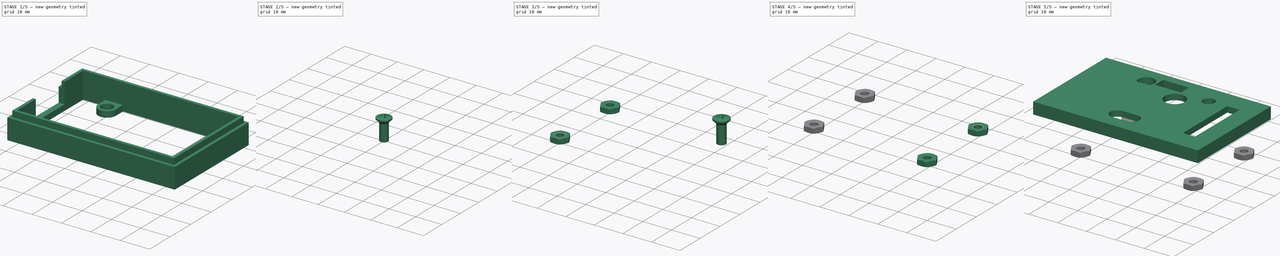
[diagram: build sequence overview — one tinted view per stage of 5, left to right]
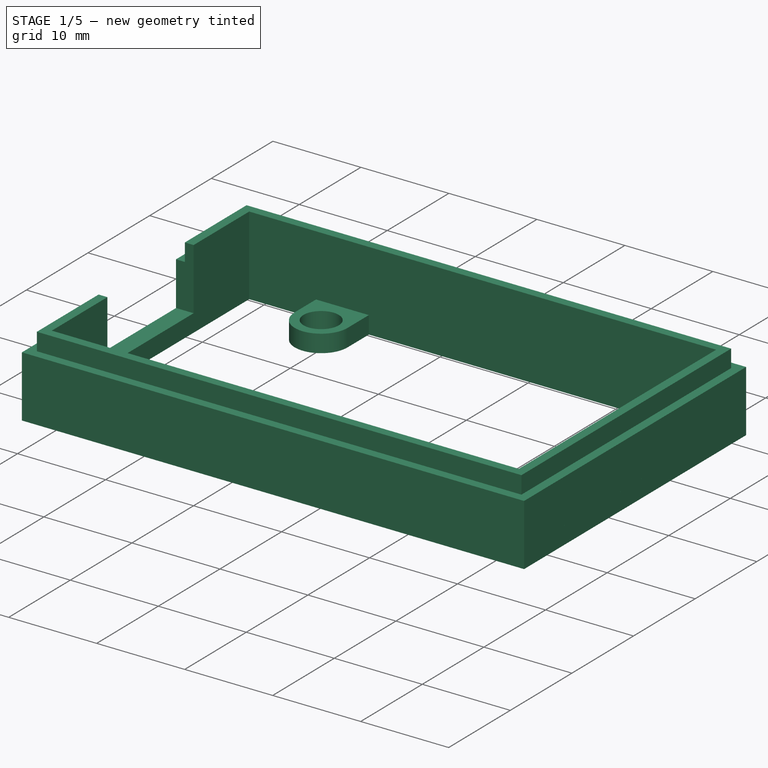
[diagram: stage 1 of 5 — iso view after this stage's code; geometry added in this stage tinted green]
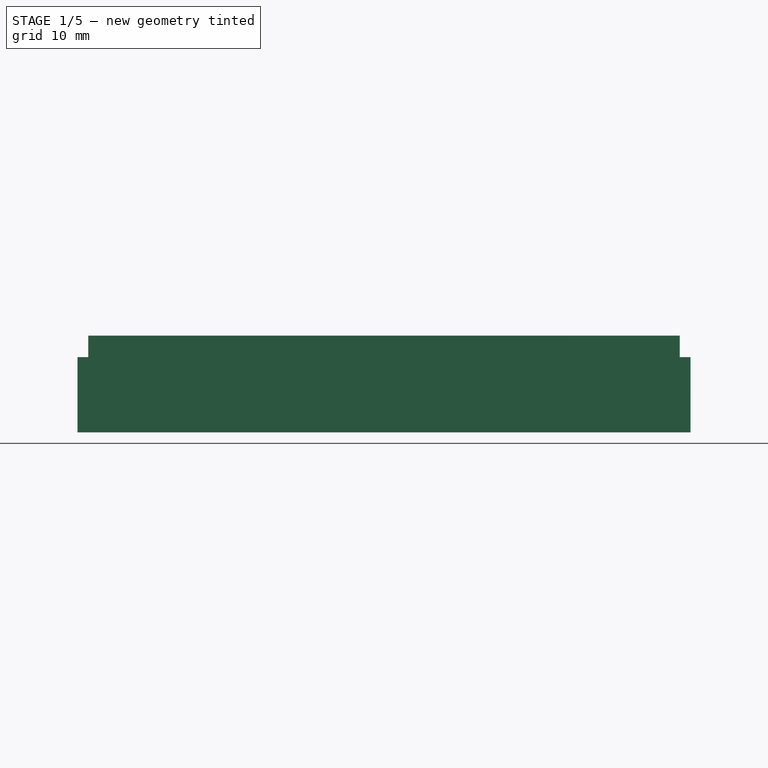
[diagram: stage 1 of 5 — front view after this stage's code; geometry added in this stage tinted green]
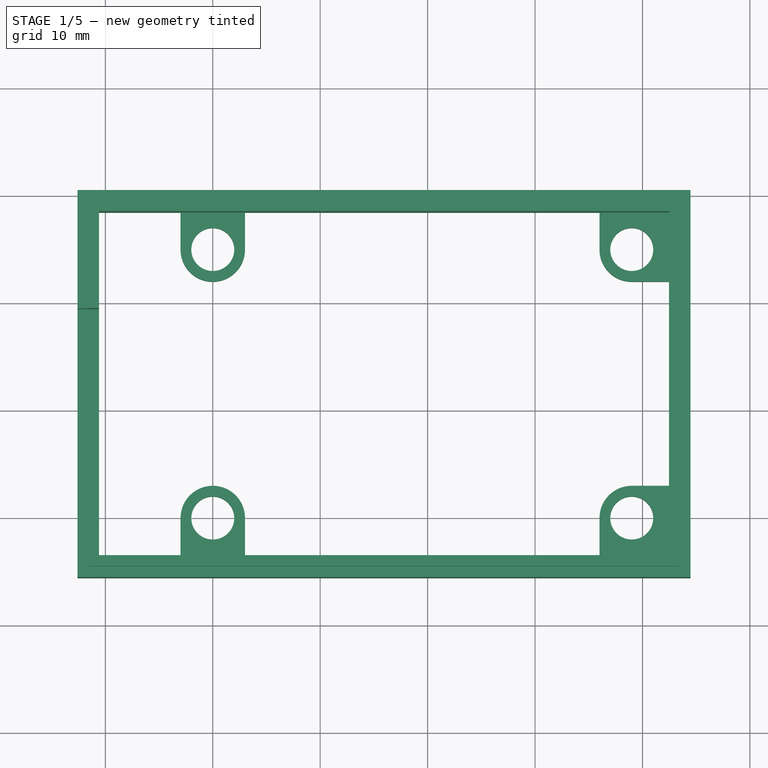
[diagram: stage 1 of 5 — top view after this stage's code; geometry added in this stage tinted green]
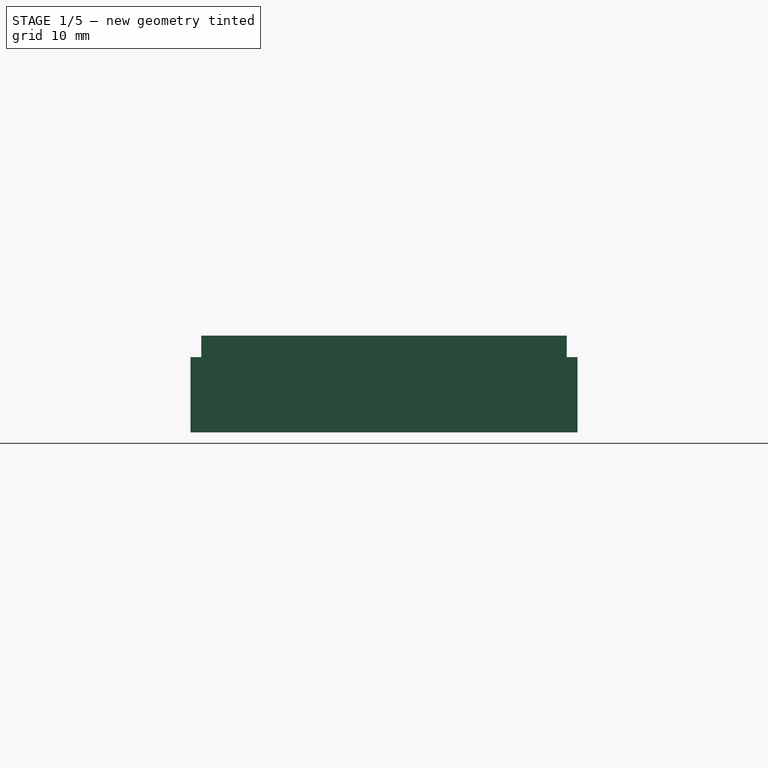
[diagram: stage 1 of 5 — right view after this stage's code; geometry added in this stage tinted green]
FCSTD DOCUMENT  (FreeCAD 0.19R)
Label: CASENINHO_V3
License: All rights reserved
LicenseURL: http://en.wikipedia.org/wiki/All_rights_reserved
objects: Part::Feature×19, App::Part×19, Part::FeaturePython×8, Part::Part2DObjectPython×6, Sketcher::SketchObject×6, Part::Extrusion×6, App::DocumentObjectGroup×4, Part::MultiFuse×2, Spreadsheet::Sheet×1
note: 47 computed .brp shape members not serialized (recipe doc carries the construction recipe); baked Part::Feature solids carry a one-line shape summary decoded from their .brp

FEATURE [Sketcher::SketchObject] Sketch001
  ExternalGeometry = -> [Rectangle,Circle003,Circle002,Circle001,Circle]
  FullyConstrained = false
  Placement = pos=(0,0,2) rot=(0,0,1;0rad)
  expr: Constraints[17] = Sketch.Constraints[17]
  expr: Constraints[33] = Spreadsheet.folga
  expr: Constraints[48] = Spreadsheet.espessura
  expr: .Placement.Base.z = Spreadsheet.espessura
  expr: Constraints[57] = Spreadsheet.bordafuro
  sketch-geometry (54):
    g0: LineSegment StartX=-9.59465 StartY=27.4474 StartZ=0 EndX=41.4728 EndY=27.4474 EndZ=0
    g1: LineSegment StartX=41.4728 StartY=27.4474 StartZ=0 EndX=41.4728 EndY=-2.5826 EndZ=0
    g2: LineSegment StartX=41.4728 StartY=-2.5826 StartZ=0 EndX=-9.59465 EndY=-2.5826 EndZ=0
    g3: LineSegment StartX=-9.59465 StartY=-2.5826 StartZ=0 EndX=-9.59465 EndY=27.4474 EndZ=0
    g4: Circle CenterX=0.00035 CenterY=24.9999 CenterZ=0 NormalX=0 NormalY=0 NormalZ=1 AngleXU=0 Radius=2
    g5: Circle CenterX=39.0003 CenterY=24.9999 CenterZ=0 NormalX=0 NormalY=0 NormalZ=1 AngleXU=0 Radius=2
    g6: Circle CenterX=39.0003 CenterY=-0.0001 CenterZ=0 NormalX=0 NormalY=0 NormalZ=1 AngleXU=0 Radius=2
    g7: Circle CenterX=0 CenterY=0 CenterZ=0 NormalX=0 NormalY=0 NormalZ=1 AngleXU=0 Radius=2
    g8: LineSegment StartX=-10.5947 StartY=28.4474 StartZ=0 EndX=-2.99965 EndY=28.4474 EndZ=0
    g9: LineSegment StartX=42.4728 StartY=28.4474 StartZ=0 EndX=42.4728 EndY=24.9999 EndZ=0
    g10: LineSegment StartX=42.4728 StartY=-3.5826 StartZ=0 EndX=39.0003 EndY=-3.5826 EndZ=0
    g11: LineSegment StartX=-10.5947 StartY=-3.5826 StartZ=0 EndX=-10.5947 EndY=28.4474 EndZ=0
    g12: LineSegment StartX=15.9391 StartY=28.4474 StartZ=0 EndX=15.9391 EndY=27.4474 EndZ=0
    g13: LineSegment StartX=-10.5947 StartY=12.4324 StartZ=0 EndX=-9.59465 EndY=12.4324 EndZ=0
    g14: LineSegment StartX=-12.5947 StartY=-5.5826 StartZ=0 EndX=44.4728 EndY=-5.5826 EndZ=0
    g15: LineSegment StartX=44.4728 StartY=-5.5826 StartZ=0 EndX=44.4728 EndY=30.4474 EndZ=0
    g16: LineSegment StartX=44.4728 StartY=30.4474 StartZ=0 EndX=-12.5947 EndY=30.4474 EndZ=0
    g17: LineSegment StartX=-12.5947 StartY=30.4474 StartZ=0 EndX=-12.5947 EndY=-5.5826 EndZ=0
    g18: LineSegment StartX=15.9391 StartY=28.4474 StartZ=0 EndX=15.9391 EndY=30.4474 EndZ=0
    g19: LineSegment StartX=-10.5947 StartY=12.4324 StartZ=0 EndX=-12.5947 EndY=12.4324 EndZ=0
    g20: ArcOfCircle CenterX=0.00035 CenterY=24.9999 CenterZ=0 NormalX=0 NormalY=0 NormalZ=1 AngleXU=0 Radius=3 StartAngle=3.14159 EndAngle=6.28319
    g21: ArcOfCircle CenterX=39.0003 CenterY=24.9999 CenterZ=0 NormalX=0 NormalY=0 NormalZ=1 AngleXU=0 Radius=3 StartAngle=3.14159 EndAngle=4.71239
    g22: ArcOfCircle CenterX=39.0003 CenterY=-0.0001 CenterZ=0 NormalX=0 NormalY=0 NormalZ=1 AngleXU=0 Radius=3 StartAngle=1.5708 EndAngle=3.14159
    g23: ArcOfCircle CenterX=0 CenterY=0 CenterZ=0 NormalX=0 NormalY=0 NormalZ=1 AngleXU=0 Radius=3 StartAngle=0 EndAngle=3.14159
    g24: LineSegment StartX=-2.99965 StartY=24.9999 StartZ=0 EndX=3.00035 EndY=24.9999 EndZ=0
    g25: LineSegment StartX=3.00035 StartY=24.9999 StartZ=0 EndX=3.00035 EndY=28.4474 EndZ=0
    g26: LineSegment StartX=-2.99965 StartY=28.4474 StartZ=0 EndX=-2.99965 EndY=24.9999 EndZ=0
    g27: LineSegment StartX=3.00035 StartY=28.4474 StartZ=0 EndX=36.0003 EndY=28.4474 EndZ=0
    g28: LineSegment StartX=-2.99965 StartY=28.4474 StartZ=0 EndX=3.00035 EndY=28.4474 EndZ=0
    g29: LineSegment StartX=39.0003 StartY=24.9999 StartZ=0 EndX=42.4728 EndY=24.9999 EndZ=0
    g30: LineSegment StartX=39.0003 StartY=21.9999 StartZ=0 EndX=39.0003 EndY=24.9999 EndZ=0
    g31: LineSegment StartX=39.0003 StartY=24.9999 StartZ=0 EndX=36.0003 EndY=24.9999 EndZ=0
    g32: LineSegment StartX=36.0003 StartY=24.9999 StartZ=0 EndX=36.0003 EndY=28.4474 EndZ=0
    g33: LineSegment StartX=42.4728 StartY=21.9999 StartZ=0 EndX=39.0003 EndY=21.9999 EndZ=0
    g34: LineSegment StartX=42.4728 StartY=21.9999 StartZ=0 EndX=42.4728 EndY=2.9999 EndZ=0
    g35: LineSegment StartX=42.4728 StartY=24.9999 StartZ=0 EndX=42.4728 EndY=21.9999 EndZ=0
    g36: LineSegment StartX=39.0003 StartY=28.4474 StartZ=0 EndX=39.0003 EndY=24.9999 EndZ=0
    g37: LineSegment StartX=39.0003 StartY=28.4474 StartZ=0 EndX=42.4728 EndY=28.4474 EndZ=0
    g38: LineSegment StartX=36.0003 StartY=28.4474 StartZ=0 EndX=39.0003 EndY=28.4474 EndZ=0
    g39: LineSegment StartX=39.0003 StartY=-0.0001 StartZ=0 EndX=42.4728 EndY=-0.0001 EndZ=0
    g40: LineSegment StartX=42.4728 StartY=-0.0001 StartZ=0 EndX=42.4728 EndY=2.9999 EndZ=0
    g41: LineSegment StartX=42.4728 StartY=2.9999 StartZ=0 EndX=39.0003 EndY=2.9999 EndZ=0
    g42: LineSegment StartX=39.0003 StartY=2.9999 StartZ=0 EndX=39.0003 EndY=-0.0001 EndZ=0
    g43: LineSegment StartX=39.0003 StartY=-0.0001 StartZ=0 EndX=36.0003 EndY=-0.0001 EndZ=0
    g44: LineSegment StartX=36.0003 StartY=-0.0001 StartZ=0 EndX=36.0003 EndY=-3.5826 EndZ=0
    g45: LineSegment StartX=36.0003 StartY=-3.5826 StartZ=0 EndX=39.0003 EndY=-3.5826 EndZ=0
    g46: LineSegment StartX=39.0003 StartY=-3.5826 StartZ=0 EndX=39.0003 EndY=-0.0001 EndZ=0
    g47: LineSegment StartX=42.4728 StartY=-0.0001 StartZ=0 EndX=42.4728 EndY=-3.5826 EndZ=0
    g48: LineSegment StartX=36.0003 StartY=-3.5826 StartZ=0 EndX=3 EndY=-3.5826 EndZ=0
    g49: LineSegment StartX=-3 StartY=0 StartZ=0 EndX=3 EndY=0 EndZ=0
    g50: LineSegment StartX=3 StartY=0 StartZ=0 EndX=3 EndY=-3.5826 EndZ=0
    g51: LineSegment StartX=3 StartY=-3.5826 StartZ=0 EndX=-3 EndY=-3.5826 EndZ=0
    g52: LineSegment StartX=-3 StartY=-3.5826 StartZ=0 EndX=-3 EndY=0 EndZ=0
    g53: LineSegment StartX=-3 StartY=-3.5826 StartZ=0 EndX=-10.5947 EndY=-3.5826 EndZ=0
  constraints (132):
    c: Coincident(g0,g1)
    c: Coincident(g1,g2)
    c: Coincident(g2,g3)
    c: Coincident(g3,g0)
    c: Horizontal(g0)
    c: Horizontal(g2)
    c: Vertical(g1)
    c: Vertical(g3)
    c: Coincident(g4,g-5)
    c: Coincident(g5,g-6)
    c: Coincident(g6,g-7)
    c: Coincident(g7,g-1)
    c: Coincident(g0,g-3)
    c: Coincident(g1,g-4)
    c: Equal(g6,g5)
    c: Equal(g5,g4)
    c: Equal(g4,g7)
    c: Diameter(g4) = 4
    c: Coincident(g37,g9)
    c: Coincident(g47,g10)
    c: Coincident(g53,g11)
    c: Coincident(g11,g8)
    c: Horizontal(g8)
    c: Horizontal(g10)
    c: Vertical(g9)
    c: Vertical(g11)
    c: Vertical(g12)
    c: Horizontal(g13)
    c: Symmetric(g8,g37,g12)
    c: Symmetric(g0,g0,g12)
    c: Symmetric(g11,g11,g13)
    c: Symmetric(g3,g3,g13)
    c: Equal(g13,g12)
    c: DistanceY(g12,g12) = 1
    c: Coincident(g14,g15)
    c: Coincident(g15,g16)
    c: Coincident(g16,g17)
    c: Coincident(g17,g14)
    c: Horizontal(g14)
    c: Horizontal(g16)
    c: Vertical(g15)
    c: Vertical(g17)
    c: Coincident(g18,g12)
    c: Vertical(g18)
    c: Symmetric(g16,g16,g18)
    c: Coincident(g19,g13)
    c: Horizontal(g19)
    c: Symmetric(g17,g17,g19)
    c: DistanceY(g18,g18) = 2
    c: Equal(g19,g18)
    c: Coincident(g20,g4)
    c: Coincident(g21,g5)
    c: Coincident(g22,g6)
    c: Coincident(g23,g7)
    c: Equal(g20,g21)
    c: Equal(g21,g23)
    c: Equal(g23,g22)
    c: Diameter(g20) = 6
    c: Coincident(g24,g25)
    c: Coincident(g26,g24)
    c: Horizontal(g24)
    c: Vertical(g25)
    c: Symmetric(g24,g24,g4)
    c: PointOnObject(g20,g24)
    c: Coincident(g20,g24)
    c: Coincident(g8,g26)
    c: Coincident(g27,g25)
    c: Tangent(g8,g27)
    c: Coincident(g28,g8)
    c: Coincident(g28,g25)
    c: Coincident(g33,g30)
    c: Coincident(g30,g29)
    c: Horizontal(g29)
    c: Vertical(g30)
    c: Coincident(g29,g5)
    c: Coincident(g31,g32)
    c: Coincident(g36,g31)
    c: Horizontal(g31)
    c: Vertical(g32)
    c: Coincident(g31,g5)
    c: PointOnObject(g33,g9)
    c: Coincident(g9,g29)
    c: Tangent(g9,g34)
    c: PointOnObject(g34,g33)
    c: Coincident(g35,g9)
    c: Coincident(g35,g33)
    c: Coincident(g21,g33)
    c: Coincident(g21,g31)
    c: Coincident(g27,g32)
    c: Coincident(g37,g36)
    c: Tangent(g27,g37)
    c: Coincident(g38,g27)
    c: Coincident(g38,g37)
    c: Coincident(g39,g40)
    c: Coincident(g40,g41)
    c: Coincident(g41,g42)
    c: Coincident(g42,g39)
    c: Horizontal(g39)
    c: Horizontal(g41)
    c: Vertical(g42)
    c: Coincident(g39,g6)
    c: Coincident(g43,g44)
    c: Coincident(g44,g45)
    c: Coincident(g45,g46)
    c: Coincident(g46,g43)
    c: Horizontal(g43)
    c: Vertical(g44)
    c: Vertical(g46)
    c: Coincident(g43,g6)
    c: Coincident(g22,g41)
    c: Coincident(g22,g43)
    c: Tangent(g34,g47)
    c: Tangent(g10,g48)
    c: Coincident(g34,g40)
    c: Coincident(g39,g47)
    c: Coincident(g44,g48)
    c: Coincident(g10,g45)
    c: Coincident(g49,g50)
    c: Coincident(g50,g51)
    c: Coincident(g51,g52)
    c: Coincident(g52,g49)
    c: Horizontal(g49)
    c: Vertical(g50)
    c: Vertical(g52)
    c: Symmetric(g49,g49,g7)
    c: PointOnObject(g23,g49)
    c: Coincident(g23,g49)
    c: Tangent(g48,g53)
    c: Coincident(g52,g53)
    c: Coincident(g48,g50)
    c: Horizontal(g33)
    c: Vertical(g26)
FEATURE [Part::Extrusion] Extrude001  label="Borda Base"
  Base = -> Sketch001
  Dir = (0,0,1)
  DirMode = 2
  FaceMakerClass = Part::FaceMakerBullseye
  LengthFwd = 2
  LengthRev = 0
  Solid = true
  Symmetric = false
  expr: LengthFwd = Spreadsheet.folgabase
FEATURE [Sketcher::SketchObject] Sketch002  label="Borda media"
  ExternalGeometry = -> [Rectangle,Circle003,Circle002,Circle001,Circle]
  FullyConstrained = true
  Placement = pos=(0,0,4) rot=(0,0,1;0rad)
  expr: Constraints[67] = Spreadsheet.usb
  expr: Constraints[17] = Sketch.Constraints[17]
  expr: Constraints[33] = Spreadsheet.folga
  expr: Constraints[49] = Spreadsheet.espessura
  expr: .Placement.Base.z = Spreadsheet.espessura + Spreadsheet.folgabase
  sketch-geometry (28):
    g0: LineSegment StartX=-9.59465 StartY=27.4474 StartZ=0 EndX=41.4728 EndY=27.4474 EndZ=0
    g1: LineSegment StartX=41.4728 StartY=27.4474 StartZ=0 EndX=41.4728 EndY=-2.5826 EndZ=0
    g2: LineSegment StartX=41.4728 StartY=-2.5826 StartZ=0 EndX=-9.59465 EndY=-2.5826 EndZ=0
    g3: LineSegment StartX=-9.59465 StartY=-2.5826 StartZ=0 EndX=-9.59465 EndY=27.4474 EndZ=0
    g4: Circle CenterX=0.00035 CenterY=24.9999 CenterZ=0 NormalX=0 NormalY=0 NormalZ=1 AngleXU=0 Radius=2
    g5: Circle CenterX=39.0003 CenterY=24.9999 CenterZ=0 NormalX=0 NormalY=0 NormalZ=1 AngleXU=0 Radius=2
    g6: Circle CenterX=39.0003 CenterY=-0.0001 CenterZ=0 NormalX=0 NormalY=0 NormalZ=1 AngleXU=0 Radius=2
    g7: Circle CenterX=0 CenterY=0 CenterZ=0 NormalX=0 NormalY=0 NormalZ=1 AngleXU=0 Radius=2
    g8: LineSegment StartX=-10.5947 StartY=28.4474 StartZ=0 EndX=42.4729 EndY=28.4474 EndZ=0
    g9: LineSegment StartX=42.4729 StartY=28.4474 StartZ=0 EndX=42.4729 EndY=-3.5826 EndZ=0
    g10: LineSegment StartX=42.4729 StartY=-3.5826 StartZ=0 EndX=-10.5947 EndY=-3.5826 EndZ=0
    g11: LineSegment StartX=-10.5947 StartY=-3.5826 StartZ=0 EndX=-10.5947 EndY=5.4324 EndZ=0
    g12: LineSegment StartX=15.9391 StartY=28.4474 StartZ=0 EndX=15.9391 EndY=27.4474 EndZ=0
    g13: LineSegment StartX=-10.5947 StartY=12.4324 StartZ=0 EndX=-9.59465 EndY=12.4324 EndZ=0
    g14: LineSegment StartX=-12.5947 StartY=30.4474 StartZ=0 EndX=44.4729 EndY=30.4474 EndZ=0
    g15: LineSegment StartX=44.4729 StartY=30.4474 StartZ=0 EndX=44.4729 EndY=-5.5826 EndZ=0
    g16: LineSegment StartX=44.4729 StartY=-5.5826 StartZ=0 EndX=-12.5947 EndY=-5.5826 EndZ=0
    g17: LineSegment StartX=-12.5947 StartY=-5.5826 StartZ=0 EndX=-12.5947 EndY=5.4324 EndZ=0
    g18: LineSegment StartX=15.9391 StartY=28.4474 StartZ=0 EndX=15.9391 EndY=30.4474 EndZ=0
    g19: LineSegment StartX=-10.5947 StartY=12.4324 StartZ=0 EndX=-12.5947 EndY=12.4324 EndZ=0
    g20: LineSegment StartX=-10.5947 StartY=19.4324 StartZ=0 EndX=-12.5947 EndY=19.4324 EndZ=0
    g21: LineSegment StartX=-12.5947 StartY=5.4324 StartZ=0 EndX=-10.5947 EndY=5.4324 EndZ=0
    g22: LineSegment StartX=-12.5947 StartY=19.4324 StartZ=0 EndX=-12.5947 EndY=30.4474 EndZ=0
    g23: LineSegment StartX=-10.5947 StartY=19.4324 StartZ=0 EndX=-10.5947 EndY=28.4474 EndZ=0
    g24: LineSegment StartX=-12.5947 StartY=19.4324 StartZ=0 EndX=-12.5947 EndY=12.4324 EndZ=0
    g25: LineSegment StartX=-12.5947 StartY=12.4324 StartZ=0 EndX=-12.5947 EndY=5.4324 EndZ=0
    g26: LineSegment StartX=-10.5947 StartY=19.4324 StartZ=0 EndX=-10.5947 EndY=12.4324 EndZ=0
    g27: LineSegment StartX=-10.5947 StartY=12.4324 StartZ=0 EndX=-10.5947 EndY=5.4324 EndZ=0
  constraints (68):
    c: Coincident(g0,g1)
    c: Coincident(g1,g2)
    c: Coincident(g2,g3)
    c: Coincident(g3,g0)
    c: Horizontal(g0)
    c: Horizontal(g2)
    c: Vertical(g1)
    c: Vertical(g3)
    c: Coincident(g4,g-5)
    c: Coincident(g5,g-6)
    c: Coincident(g6,g-7)
    c: Coincident(g7,g-1)
    c: Coincident(g0,g-3)
    c: Coincident(g1,g-4)
    c: Equal(g6,g5)
    c: Equal(g5,g4)
    c: Equal(g4,g7)
    c: Diameter(g4) = 4
    c: Coincident(g8,g9)
    c: Coincident(g9,g10)
    c: Coincident(g10,g11)
    c: Coincident(g23,g8)
    c: Horizontal(g8)
    c: Horizontal(g10)
    c: Vertical(g9)
    c: Vertical(g11)
    c: Vertical(g12)
    c: Horizontal(g13)
    c: Symmetric(g8,g8,g12)
    c: Symmetric(g0,g0,g12)
    c: Symmetric(g11,g23,g13)
    c: Symmetric(g3,g3,g13)
    c: Equal(g13,g12)
    c: DistanceY(g12,g12) = 1
    c: Coincident(g14,g15)
    c: Coincident(g15,g16)
    c: Coincident(g16,g17)
    c: Coincident(g22,g14)
    c: Horizontal(g14)
    c: Horizontal(g16)
    c: Vertical(g15)
    c: Vertical(g17)
    c: Vertical(g18)
    c: Coincident(g19,g13)
    c: Horizontal(g19)
    c: Coincident(g12,g18)
    c: Symmetric(g14,g14,g18)
    c: Symmetric(g17,g22,g19)
    c: Equal(g19,g18)
    c: DistanceY(g18,g18) = 2
    c: Horizontal(g20)
    c: Horizontal(g21)
    c: Coincident(g22,g20)
    c: Tangent(g17,g22)
    c: Coincident(g23,g20)
    c: Tangent(g11,g23)
    c: Coincident(g11,g21)
    c: Coincident(g17,g21)
    c: Coincident(g20,g24)
    c: Coincident(g24,g19)
    c: Coincident(g24,g25)
    c: Coincident(g25,g17)
    c: Coincident(g20,g26)
    c: Coincident(g26,g13)
    c: Coincident(g26,g27)
    c: Coincident(g27,g11)
    c: Equal(g24,g25)
    c: DistanceY(g17,g20) = 14
FEATURE [Part::Extrusion] Extrude002  label="Borda Media"
  Base = -> Sketch002
  Dir = (0,0,1)
  DirMode = 2
  FaceMakerClass = Part::FaceMakerBullseye
  LengthFwd = 5
  LengthRev = 0
  Solid = true
  Symmetric = false
  expr: LengthFwd = Spreadsheet.hborda
FEATURE [Part::Part2DObjectPython] Rectangle001  # Draft 2D object (typed FeaturePython)
  Area = 2056.14
  ChamferSize = 0
  Columns = 1
  FilletRadius = 0
  Height = 36.03
  Length = 57.0675
  MakeFace = true
  Placement = pos=(-12.5947,-5.5826,9) rot=(0,0,1;0rad)
  Rows = 1
  expr: .Placement.Base.z = Spreadsheet.hborda + Spreadsheet.espessura + Spreadsheet.folgabase
FEATURE [App::DocumentObjectGroup] Group001  label="Draft"
  Group = -> [Rectangle,Circle,Circle001,Circle002,Circle003,Rectangle001]
FEATURE [Sketcher::SketchObject] Sketch003  label="Encaixe Interno001"
  ExternalGeometry = -> [Rectangle,Circle003,Circle002,Circle001,Circle]
  FullyConstrained = true
  Placement = pos=(0,0,9) rot=(0,0,1;0rad)
  expr: Constraints[61] = Spreadsheet.folga
  expr: Constraints[58] = Spreadsheet.usb
  expr: Constraints[57] = Spreadsheet.espessura / 2
  expr: .Placement.Base.z = Spreadsheet.hborda + Spreadsheet.espessura + Spreadsheet.folgabase
  expr: Constraints[17] = Sketch.Constraints[17]
  sketch-geometry (26):
    g0: LineSegment StartX=-9.59465 StartY=27.4474 StartZ=0 EndX=41.4728 EndY=27.4474 EndZ=0
    g1: LineSegment StartX=41.4728 StartY=27.4474 StartZ=0 EndX=41.4728 EndY=-2.5826 EndZ=0
    g2: LineSegment StartX=41.4728 StartY=-2.5826 StartZ=0 EndX=-9.59465 EndY=-2.5826 EndZ=0
    g3: LineSegment StartX=-9.59465 StartY=-2.5826 StartZ=0 EndX=-9.59465 EndY=27.4474 EndZ=0
    g4: Circle CenterX=0.00035 CenterY=24.9999 CenterZ=0 NormalX=0 NormalY=0 NormalZ=1 AngleXU=0 Radius=2
    g5: Circle CenterX=39.0003 CenterY=24.9999 CenterZ=0 NormalX=0 NormalY=0 NormalZ=1 AngleXU=0 Radius=2
    g6: Circle CenterX=39.0003 CenterY=-0.0001 CenterZ=0 NormalX=0 NormalY=0 NormalZ=1 AngleXU=0 Radius=2
    g7: Circle CenterX=0 CenterY=0 CenterZ=0 NormalX=0 NormalY=0 NormalZ=1 AngleXU=0 Radius=2
    g8: LineSegment StartX=-11.5947 StartY=29.4474 StartZ=0 EndX=43.4728 EndY=29.4474 EndZ=0
    g9: LineSegment StartX=43.4728 StartY=29.4474 StartZ=0 EndX=43.4728 EndY=-4.5826 EndZ=0
    g10: LineSegment StartX=43.4728 StartY=-4.5826 StartZ=0 EndX=-11.5947 EndY=-4.5826 EndZ=0
    g11: LineSegment StartX=-11.5947 StartY=-4.5826 StartZ=0 EndX=-11.5947 EndY=5.4324 EndZ=0
    g12: LineSegment StartX=-10.5947 StartY=28.4474 StartZ=0 EndX=42.4728 EndY=28.4474 EndZ=0
    g13: LineSegment StartX=42.4728 StartY=28.4474 StartZ=0 EndX=42.4728 EndY=-3.5826 EndZ=0
    g14: LineSegment StartX=42.4728 StartY=-3.5826 StartZ=0 EndX=-10.5947 EndY=-3.5826 EndZ=0
    g15: LineSegment StartX=-10.5947 StartY=-3.5826 StartZ=0 EndX=-10.5947 EndY=5.4324 EndZ=0
    g16: LineSegment StartX=15.9391 StartY=27.4474 StartZ=0 EndX=15.9391 EndY=28.4474 EndZ=0
    g17: LineSegment StartX=15.9391 StartY=28.4474 StartZ=0 EndX=15.9391 EndY=29.4474 EndZ=0
    g18: LineSegment StartX=-11.5947 StartY=19.4324 StartZ=0 EndX=-10.5947 EndY=19.4324 EndZ=0
    g19: LineSegment StartX=-11.5947 StartY=5.4324 StartZ=0 EndX=-10.5947 EndY=5.4324 EndZ=0
    g20: LineSegment StartX=-11.5947 StartY=19.4324 StartZ=0 EndX=-11.5947 EndY=29.4474 EndZ=0
    g21: LineSegment StartX=-10.5947 StartY=19.4324 StartZ=0 EndX=-10.5947 EndY=28.4474 EndZ=0
    g22: LineSegment StartX=-11.5947 StartY=19.4324 StartZ=0 EndX=-11.5947 EndY=5.4324 EndZ=0
    g23: LineSegment StartX=-10.5947 StartY=19.4324 StartZ=0 EndX=-10.5947 EndY=5.4324 EndZ=0
    g24: LineSegment StartX=-11.5947 StartY=12.4324 StartZ=0 EndX=-10.5947 EndY=12.4324 EndZ=0
    g25: LineSegment StartX=-10.5947 StartY=12.4324 StartZ=0 EndX=-9.59465 EndY=12.4324 EndZ=0
  constraints (64):
    c: Coincident(g0,g1)
    c: Coincident(g1,g2)
    c: Coincident(g2,g3)
    c: Coincident(g3,g0)
    c: Horizontal(g0)
    c: Horizontal(g2)
    c: Vertical(g1)
    c: Vertical(g3)
    c: Coincident(g4,g-5)
    c: Coincident(g5,g-6)
    c: Coincident(g6,g-7)
    c: Coincident(g7,g-1)
    c: Coincident(g0,g-3)
    c: Coincident(g1,g-4)
    c: Equal(g6,g5)
    c: Equal(g5,g4)
    c: Equal(g4,g7)
    c: Diameter(g4) = 4
    c: Coincident(g8,g9)
    c: Coincident(g9,g10)
    c: Coincident(g10,g11)
    c: Coincident(g20,g8)
    c: Horizontal(g8)
    c: Horizontal(g10)
    c: Vertical(g9)
    c: Vertical(g11)
    c: Coincident(g12,g13)
    c: Coincident(g13,g14)
    c: Coincident(g14,g15)
    c: Coincident(g21,g12)
    c: Horizontal(g12)
    c: Horizontal(g14)
    c: Vertical(g13)
    c: Vertical(g15)
    c: Vertical(g16)
    c: Coincident(g16,g17)
    c: Vertical(g17)
    c: Horizontal(g18)
    c: Horizontal(g19)
    c: Coincident(g11,g19)
    c: Coincident(g20,g18)
    c: Tangent(g11,g20)
    c: Coincident(g15,g19)
    c: Coincident(g21,g18)
    c: Tangent(g15,g21)
    c: Coincident(g22,g18)
    c: Coincident(g22,g11)
    c: Coincident(g23,g18)
    c: Coincident(g23,g15)
    c: Coincident(g24,g25)
    c: Horizontal(g25)
    c: Symmetric(g3,g3,g25)
    c: Symmetric(g22,g22,g24)
    c: Symmetric(g8,g8,g17)
    c: Symmetric(g0,g0,g16)
    c: Equal(g17,g24)
    c: Equal(g25,g16)
    c: DistanceY(g17,g17) = 1
    c: DistanceY(g22,g22) = 14
    c: Symmetric(g12,g12,g16)
    c: Symmetric(g23,g23,g24)
    c: DistanceY(g16,g16) = 1
    c: Equal(g15,g21)
    c: Equal(g20,g11)
FEATURE [Part::Extrusion] Extrude003  label="Encaixe Interno"
  Base = -> Sketch003
  Dir = (0,0,1)
  DirMode = 2
  FaceMakerClass = Part::FaceMakerBullseye
  LengthFwd = 2
  LengthRev = 0
  Solid = true
  Symmetric = false
  expr: LengthFwd = Spreadsheet.espessura
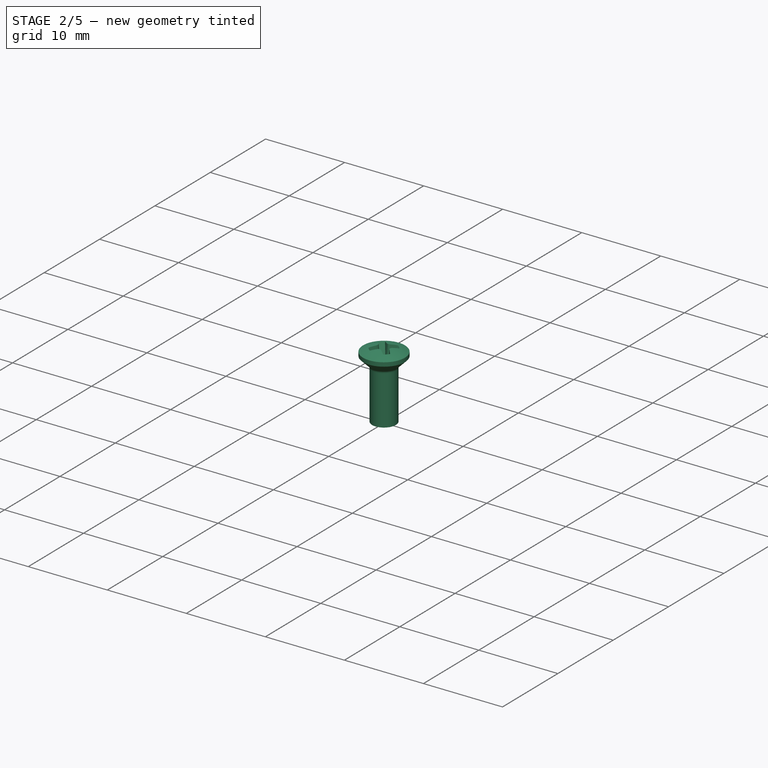
[diagram: stage 2 of 5 — iso view after this stage's code; geometry added in this stage tinted green]
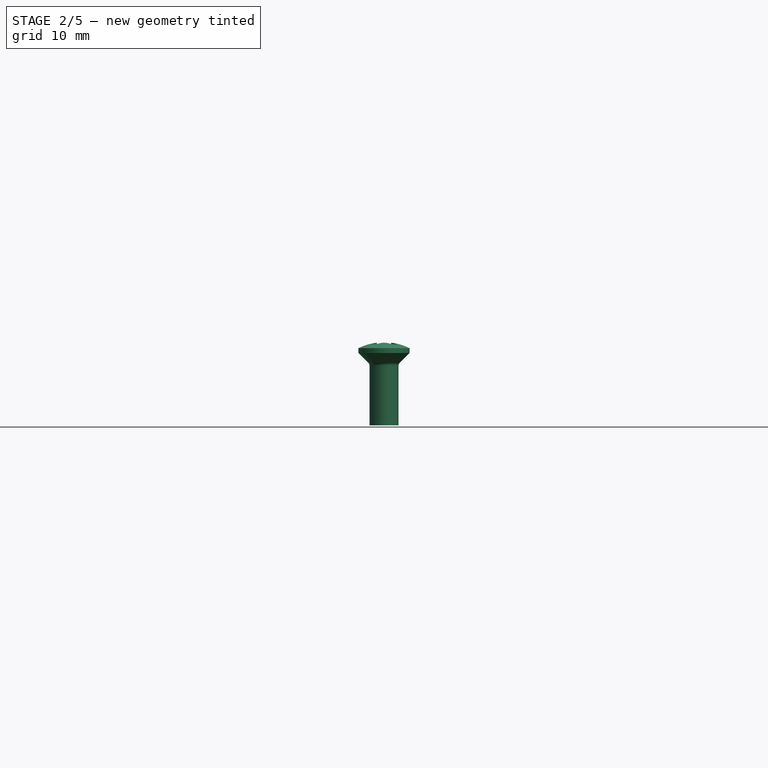
[diagram: stage 2 of 5 — front view after this stage's code; geometry added in this stage tinted green]
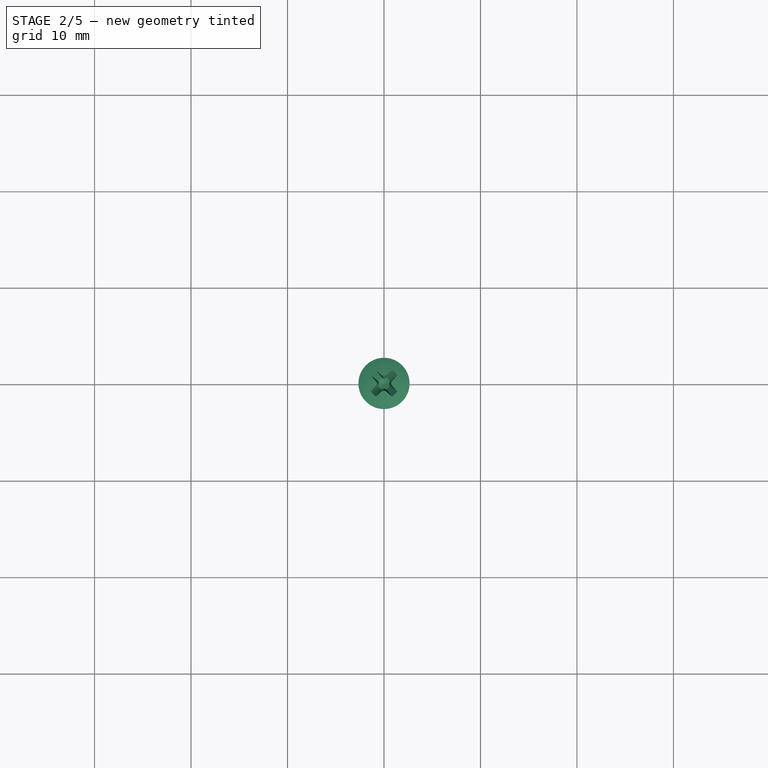
[diagram: stage 2 of 5 — top view after this stage's code; geometry added in this stage tinted green]
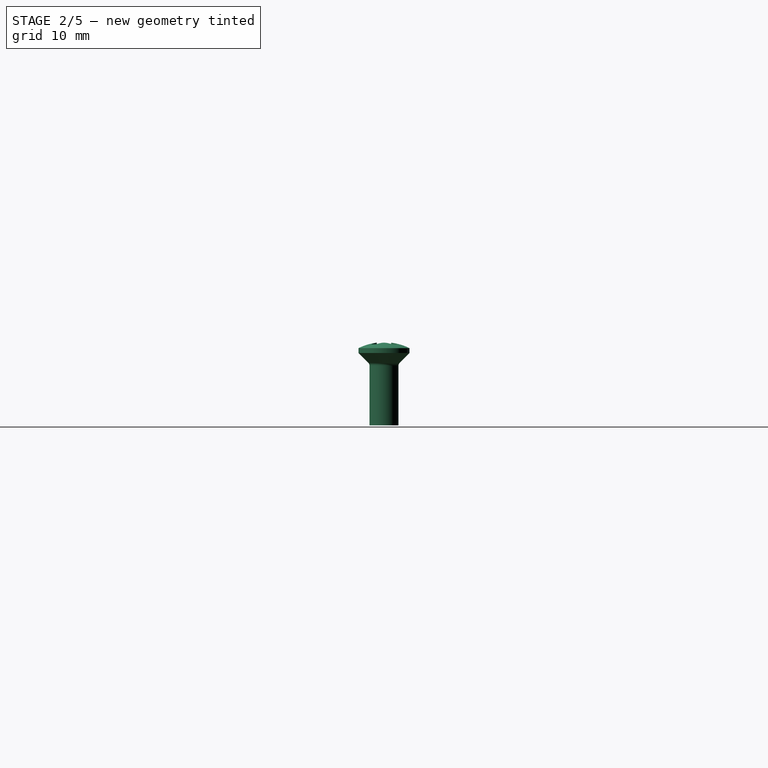
[diagram: stage 2 of 5 — right view after this stage's code; geometry added in this stage tinted green]
FEATURE [Spreadsheet::Sheet] Spreadsheet
  cells = A1=Espessura; B1(espessura)=2; A2=Folga Base; B2(folgabase)=2; A3=Folga; B3(folga)=1; A4=Furo; B4(furo)=4; A5=Borda do furo; B5(bordafuro)==3 * furo / 2; A6=Altura da borda superior; B6(hborda)=5; A7=Abertura USB; B7(usb)=14
FEATURE [Part::Feature] Part__Feature  label="SOLID"
  shape: bbox 3.4 x 3.8 x 10.8 mm, 16 faces (baked)
FEATURE [App::Part] LED_D3_0mm_Clear  label="LED_D3.0mm_Clear"
  Group = -> [Part__Feature]
  Origin = -> Origin
  Placement = pos=(144.272,-114.828,-1.35) rot=(0,0,-1;1.5708rad)
FEATURE [Part::Feature] Part__Feature001  label="COMPOUND"
  shape: bbox 12.7 x 5.89 x 20.2 mm, 218 faces, 3 solids (baked)
FEATURE [App::Part] USB_AM_S_F_B_TH  label="USB-AM-S-F-B-TH"
  Group = -> [Part__Feature001]
  Origin = -> Origin001
  Placement = pos=(117.552,-105.019,0.15) rot=(0.57735,-0.57735,-0.57735;2.0944rad)
FEATURE [Part::Feature] Part__Feature002  label="SOLID"
  shape: bbox 8.306 x 1.61 x 4.605 mm, 21 faces (baked)
FEATURE [App::Part] D_DO_34_SOD68_P7_62mm_Horizontal  label="D_DO-34_SOD68_P7.62mm_Horizontal"
  Group = -> [Part__Feature002]
  Origin = -> Origin002
  Placement = pos=(140.146,-109.814,1.65) rot=(0,0,1;3.14159rad)
FEATURE [Part::Feature] Part__Feature003  label="SOLID"
  shape: bbox 8.306 x 1.61 x 4.605 mm, 21 faces (baked)
FEATURE [App::Part] D_DO_34_SOD68_P7_62mm_Horizontal001  label="D_DO-34_SOD68_P7.62mm_Horizontal"
  Group = -> [Part__Feature003]
  Origin = -> Origin003
  Placement = pos=(140.047,-100.452,1.65) rot=(0,0,1;3.14159rad)
FEATURE [Part::Feature] Part__Feature004  label="SOLID"
  shape: bbox 3.8 x 2.6 x 5.9 mm, 10 faces (baked)
FEATURE [App::Part] C_Disc_D3_8mm_W2_6mm_P2_50mm  label="C_Disc_D3.8mm_W2.6mm_P2.50mm"
  Group = -> [Part__Feature004]
  Origin = -> Origin004
  Placement = pos=(144.165,-97.79,1.65) rot=(0,0,1;0rad)
FEATURE [Part::Feature] Part__Feature005  label="SOLID"
  shape: bbox 10.96 x 2.706 x 5.603 mm, 17 faces (baked)
FEATURE [App::Part] R_Axial_DIN0207_L6_3mm_D2_5mm_P10_16mm_Horizontal  label="R_Axial_DIN0207_L6.3mm_D2.5mm_P10.16mm_Horizontal"
  Group = -> [Part__Feature005]
  Origin = -> Origin005
  Placement = pos=(131.262,-103.928,1.65) rot=(0,0,1;0rad)
FEATURE [Part::Feature] Part__Feature006  label="SOLID"
  shape: bbox 10.96 x 2.706 x 5.603 mm, 17 faces (baked)
FEATURE [App::Part] R_Axial_DIN0207_L6_3mm_D2_5mm_P10_16mm_Horizontal001  label="R_Axial_DIN0207_L6.3mm_D2.5mm_P10.16mm_Horizontal"
  Group = -> [Part__Feature006]
  Origin = -> Origin006
  Placement = pos=(131.325,-106.893,1.65) rot=(0,0,1;0rad)
FEATURE [Part::Feature] Part__Feature007  label="SOLID"
  shape: bbox 10.96 x 2.706 x 5.603 mm, 17 faces (baked)
FEATURE [App::Part] R_Axial_DIN0207_L6_3mm_D2_5mm_P10_16mm_Horizontal002  label="R_Axial_DIN0207_L6.3mm_D2.5mm_P10.16mm_Horizontal"
  Group = -> [Part__Feature007]
  Origin = -> Origin007
  Placement = pos=(141.325,-112.776,1.65) rot=(0,0,1;3.14159rad)
FEATURE [Part::Feature] Part__Feature008  label="SOLID"
  shape: bbox 3.4 x 3.8 x 10.8 mm, 16 faces (baked)
FEATURE [App::Part] LED_D3_0mm_Clear001  label="LED_D3.0mm_Clear"
  Group = -> [Part__Feature008]
  Origin = -> Origin008
  Placement = pos=(149.352,-114.828,-1.35) rot=(0,0,-1;1.5708rad)
FEATURE [Part::Feature] Part__Feature009  label="SOLID"
  shape: bbox 10.96 x 2.706 x 5.603 mm, 17 faces (baked)
FEATURE [App::Part] R_Axial_DIN0207_L6_3mm_D2_5mm_P10_16mm_Horizontal003  label="R_Axial_DIN0207_L6.3mm_D2.5mm_P10.16mm_Horizontal"
  Group = -> [Part__Feature009]
  Origin = -> Origin009
  Placement = pos=(147.486,-100.623,1.65) rot=(0,0,-1;1.5708rad)
FEATURE [Part::Feature] Part__Feature010  label="SOLID"
  shape: bbox 8.306 x 1.61 x 4.605 mm, 21 faces (baked)
FEATURE [App::Part] D_DO_34_SOD68_P7_62mm_Horizontal002  label="D_DO-34_SOD68_P7.62mm_Horizontal"
  Group = -> [Part__Feature010]
  Origin = -> Origin010
  Placement = pos=(140.216,-97.6105,1.65) rot=(0,0,1;3.14159rad)
FEATURE [Part::Feature] Part__Feature011  label="SOLID"
  shape: bbox 10.96 x 2.706 x 5.603 mm, 17 faces (baked)
FEATURE [App::Part] R_Axial_DIN0207_L6_3mm_D2_5mm_P10_16mm_Horizontal004  label="R_Axial_DIN0207_L6.3mm_D2.5mm_P10.16mm_Horizontal"
  Group = -> [Part__Feature011]
  Origin = -> Origin011
  Placement = pos=(144.321,-100.623,1.65) rot=(0,0,-1;1.5708rad)
FEATURE [Part::Feature] Part__Feature012  label="SOLID"
  shape: bbox 2.54 x 20.32 x 11.54 mm, 196 faces (baked)
FEATURE [App::Part] PinHeader_1x08_P2_54mm_Vertical  label="PinHeader_1x08_P2.54mm_Vertical"
  Group = -> [Part__Feature012]
  Origin = -> Origin012
  Placement = pos=(168.88,-113.761,1.65) rot=(0,0,1;3.14159rad)
FEATURE [Part::Feature] Part__Feature013  label="SOLID"
  shape: bbox 2.54 x 7.62 x 11.54 mm, 76 faces (baked)
FEATURE [App::Part] PinHeader_1x03_P2_54mm_Vertical  label="PinHeader_1x03_P2.54mm_Vertical"
  Group = -> [Part__Feature013]
  Origin = -> Origin013
  Placement = pos=(148.892,-91.9761,1.65) rot=(0,0,-1;1.5708rad)
FEATURE [Part::Feature] Part__Feature014  label="SOLID"
  shape: bbox 7.174 x 6 x 10.8 mm, 105 faces (baked)
FEATURE [App::Part] SW_PUSH_6mm_H7_3mm  label="SW_PUSH_6mm_H7.3mm"
  Group = -> [Part__Feature014]
  Origin = -> Origin014
  Placement = pos=(163.778,-96.484,1.65) rot=(0,0,1;3.14159rad)
FEATURE [Part::Feature] Part__Feature015  label="SOLID"
  shape: bbox 5.58 x 3.745 x 10 mm, 27 faces (baked)
FEATURE [App::Part] TO_92_Inline_Wide  label="TO-92_Inline_Wide"
  Group = -> [Part__Feature015]
  Origin = -> Origin015
  Placement = pos=(135.89,-93.345,1.65) rot=(0,0,1;0rad)
FEATURE [Part::Feature] Part__Feature016  label="SOLID"
  shape: bbox 7.874 x 9.27 x 6.98 mm, 148 faces (baked)
FEATURE [App::Part] DIP_8_W7_62mm  label="DIP-8_W7.62mm"
  Group = -> [Part__Feature016]
  Origin = -> Origin016
  Placement = pos=(164.084,-101.092,1.65) rot=(0,0,-1;1.5708rad)
FEATURE [Part::Feature] Part__Feature017  label="SOLID"
  shape: bbox 8.115 x 8.603 x 13 mm, 32 faces (baked)
FEATURE [App::Part] C_Radial_D6_3mm_H11_0mm_P2_50mm  label="C_Radial_D6.3mm_H11.0mm_P2.50mm"
  Group = -> [Part__Feature017]
  Origin = -> Origin017
  Placement = pos=(151.892,-97.282,1.65) rot=(0,0,-1;1.5708rad)
FEATURE [Part::Feature] Part__Feature018  label="COMPOUND"
  shape: bbox 51.07 x 30.03 x 1.6 mm, 68 faces (baked)
FEATURE [App::Part] Open_CASCADE_STEP_translator_6_9_1  label="Open CASCADE STEP translator 6.9 1"
  Group = -> [LED_D3_0mm_Clear,USB_AM_S_F_B_TH,D_DO_34_SOD68_P7_62mm_Horizontal,D_DO_34_SOD68_P7_62mm_Horizontal001,C_Disc_D3_8mm_W2_6mm_P2_50mm,R_Axial_DIN0207_L6_3mm_D2_5mm_P10_16mm_Horizontal,R_Axial_DIN0207_L6_3mm_D2_5mm_P10_16mm_Horizontal001,R_Axial_DIN0207_L6_3mm_D2_5mm_P10_16mm_Horizontal002,LED_D3_0mm_Clear001,R_Axial_DIN0207_L6_3mm_D2_5mm_P10_16mm_Horizontal003,D_DO_34_SOD68_P7_62mm_Horizontal002,+8 more]
  Origin = -> Origin018
  Placement = pos=(-132.562,117.436,4) rot=(0,0,1;0rad)
  expr: .Placement.Base.z = Spreadsheet.espessura + Spreadsheet.folgabase
FEATURE [App::DocumentObjectGroup] Group  label="Franzininho"
  Group = -> [Open_CASCADE_STEP_translator_6_9_1]
FEATURE [Part::Part2DObjectPython] Rectangle  # Draft 2D object (typed FeaturePython)
  Area = 1533.56
  ChamferSize = 0
  Columns = 1
  FilletRadius = 0
  Height = 30.03
  Length = 51.0675
  MakeFace = true
  Placement = pos=(-9.59465,-2.5826,0) rot=(0,0,1;0rad)
  Rows = 1
FEATURE [Part::Part2DObjectPython] Circle  # Draft 2D object (typed FeaturePython)
  Area = 7.06858
  FirstAngle = 0
  LastAngle = 0
  MakeFace = true
  Placement = pos=(0.00035,-0.0001,0) rot=(0,0,1;0rad)
  Radius = 1.5
FEATURE [Part::Part2DObjectPython] Circle001  # Draft 2D object (typed FeaturePython)
  Area = 7.06858
  FirstAngle = 0
  LastAngle = 0
  MakeFace = true
  Placement = pos=(39.0003,-0.0001,0) rot=(0,0,1;0rad)
  Radius = 1.5
FEATURE [Part::Part2DObjectPython] Circle002  # Draft 2D object (typed FeaturePython)
  Area = 7.06858
  FirstAngle = 0
  LastAngle = 0
  MakeFace = true
  Placement = pos=(39.0003,24.9999,0) rot=(0,0,1;0rad)
  Radius = 1.5
FEATURE [Part::Part2DObjectPython] Circle003  # Draft 2D object (typed FeaturePython)
  Area = 7.06858
  FirstAngle = 0
  LastAngle = 0
  MakeFace = true
  Placement = pos=(0.00035,24.9999,0) rot=(0,0,1;0rad)
  Radius = 1.5
FEATURE [Sketcher::SketchObject] Sketch  label="Base001"
  ExternalGeometry = -> [Rectangle,Circle003,Circle002,Circle001,Circle]
  FullyConstrained = true
  expr: Constraints[17] = Spreadsheet.furo
  expr: Constraints[33] = Spreadsheet.espessura + Spreadsheet.folga
  sketch-geometry (14):
    g0: LineSegment StartX=-9.59465 StartY=27.4474 StartZ=0 EndX=41.4728 EndY=27.4474 EndZ=0
    g1: LineSegment StartX=41.4728 StartY=27.4474 StartZ=0 EndX=41.4728 EndY=-2.5826 EndZ=0
    g2: LineSegment StartX=41.4728 StartY=-2.5826 StartZ=0 EndX=-9.59465 EndY=-2.5826 EndZ=0
    g3: LineSegment StartX=-9.59465 StartY=-2.5826 StartZ=0 EndX=-9.59465 EndY=27.4474 EndZ=0
    g4: Circle CenterX=0.00035 CenterY=24.9999 CenterZ=0 NormalX=0 NormalY=0 NormalZ=1 AngleXU=0 Radius=2
    g5: Circle CenterX=39.0003 CenterY=24.9999 CenterZ=0 NormalX=0 NormalY=0 NormalZ=1 AngleXU=0 Radius=2
    g6: Circle CenterX=39.0003 CenterY=-0.0001 CenterZ=0 NormalX=0 NormalY=0 NormalZ=1 AngleXU=0 Radius=2
    g7: Circle CenterX=0 CenterY=0 CenterZ=0 NormalX=0 NormalY=0 NormalZ=1 AngleXU=0 Radius=2
    g8: LineSegment StartX=-12.5947 StartY=30.4474 StartZ=0 EndX=44.4728 EndY=30.4474 EndZ=0
    g9: LineSegment StartX=44.4728 StartY=30.4474 StartZ=0 EndX=44.4728 EndY=-5.5826 EndZ=0
    g10: LineSegment StartX=44.4728 StartY=-5.5826 StartZ=0 EndX=-12.5947 EndY=-5.5826 EndZ=0
    g11: LineSegment StartX=-12.5947 StartY=-5.5826 StartZ=0 EndX=-12.5947 EndY=30.4474 EndZ=0
    g12: LineSegment StartX=15.9391 StartY=30.4474 StartZ=0 EndX=15.9391 EndY=27.4474 EndZ=0
    g13: LineSegment StartX=-12.5947 StartY=12.4324 StartZ=0 EndX=-9.59465 EndY=12.4324 EndZ=0
  constraints (34):
    c: Coincident(g0,g1)
    c: Coincident(g1,g2)
    c: Coincident(g2,g3)
    c: Coincident(g3,g0)
    c: Horizontal(g0)
    c: Horizontal(g2)
    c: Vertical(g1)
    c: Vertical(g3)
    c: Coincident(g4,g-5)
    c: Coincident(g5,g-6)
    c: Coincident(g6,g-7)
    c: Coincident(g7,g-1)
    c: Coincident(g0,g-3)
    c: Coincident(g1,g-4)
    c: Equal(g6,g5)
    c: Equal(g5,g4)
    c: Equal(g4,g7)
    c: Diameter(g4) = 4
    c: Coincident(g8,g9)
    c: Coincident(g9,g10)
    c: Coincident(g10,g11)
    c: Coincident(g11,g8)
    c: Horizontal(g8)
    c: Horizontal(g10)
    c: Vertical(g9)
    c: Vertical(g11)
    c: Vertical(g12)
    c: Horizontal(g13)
    c: Symmetric(g8,g8,g12)
    c: Symmetric(g0,g0,g12)
    c: Symmetric(g11,g11,g13)
    c: Symmetric(g3,g3,g13)
    c: Equal(g13,g12)
    c: DistanceY(g12,g12) = 3
FEATURE [Part::Extrusion] Extrude  label="Base"
  Base = -> Sketch
  Dir = (0,0,1)
  DirMode = 2
  FaceMakerClass = Part::FaceMakerBullseye
  LengthFwd = 2
  LengthRev = 0
  Solid = true
  Symmetric = false
  expr: LengthFwd = Spreadsheet.espessura
FEATURE [Part::MultiFuse] Fusion  label="Case"
  Refine = true
  Shapes = -> [Extrude002,Extrude003,Extrude001,Extrude]
FEATURE [Part::FeaturePython] Screw003  label="M3x8-Screw003"  # Fasteners workbench fastener (typed FeaturePython)
  Placement = pos=(0,0,6) rot=(0,0,1;0rad)
  baseObject = -> Fusion [Edge94]
  diameter = 4
  invert = false
  length = 3
  lengthCustom = 8
  matchOuter = false
  offset = 2
  thread = false
  type = 35
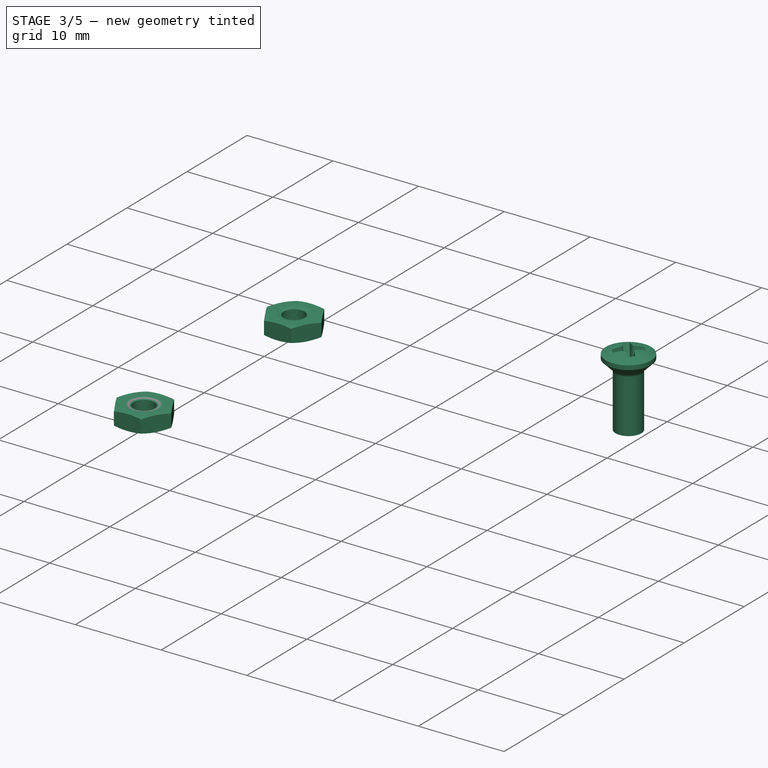
[diagram: stage 3 of 5 — iso view after this stage's code; geometry added in this stage tinted green]
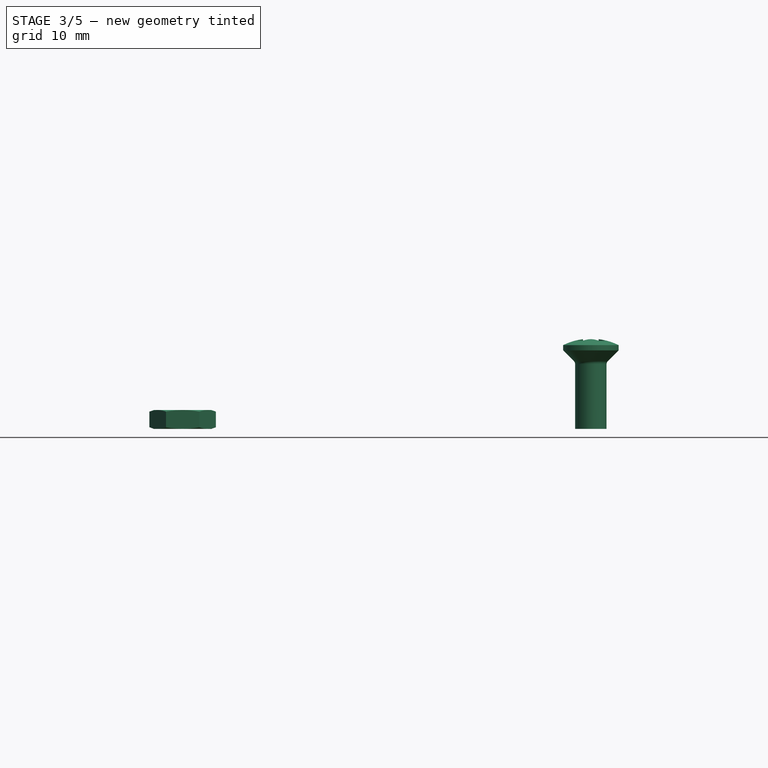
[diagram: stage 3 of 5 — front view after this stage's code; geometry added in this stage tinted green]
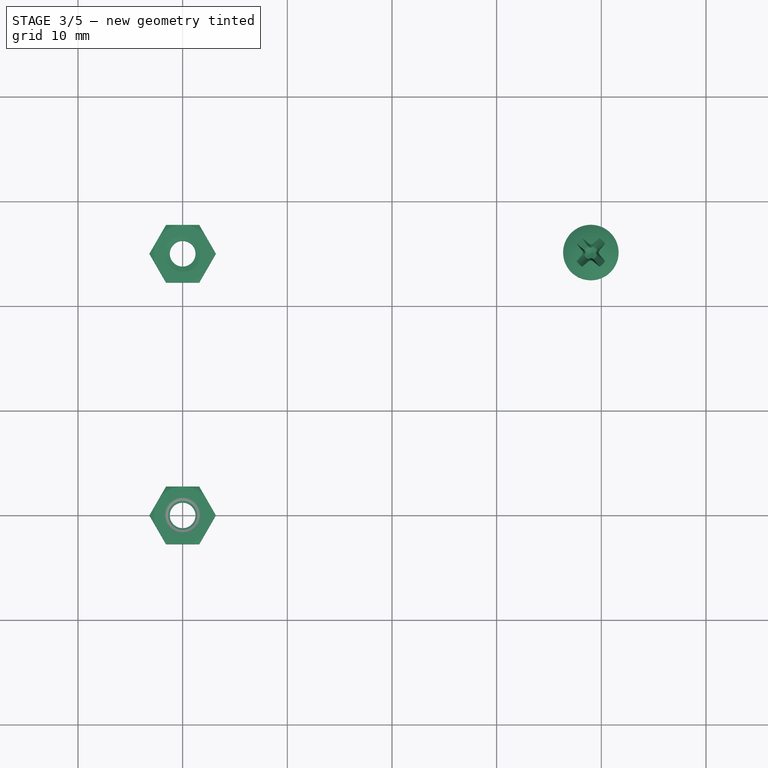
[diagram: stage 3 of 5 — top view after this stage's code; geometry added in this stage tinted green]
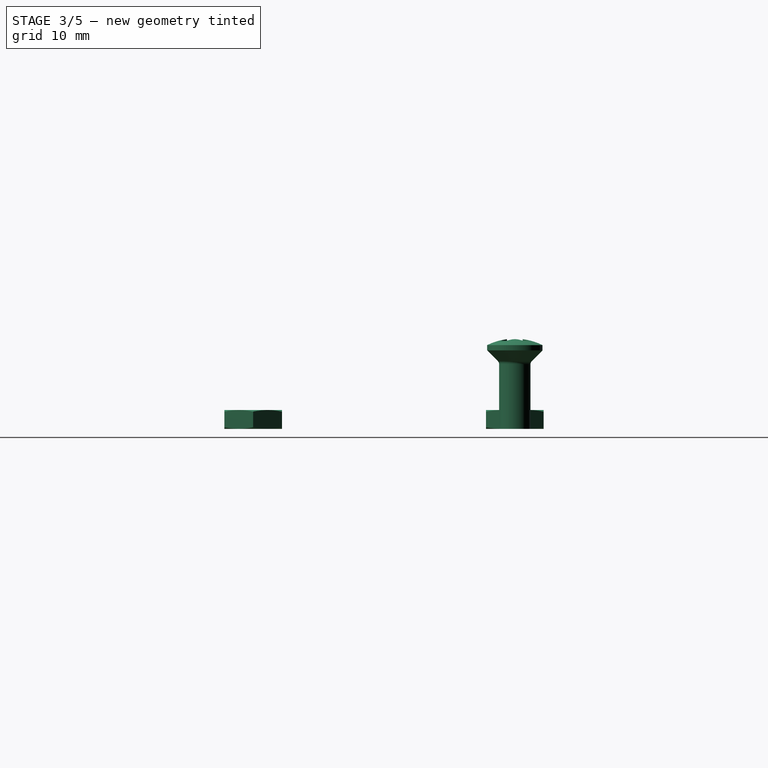
[diagram: stage 3 of 5 — right view after this stage's code; geometry added in this stage tinted green]
FEATURE [Part::FeaturePython] Screw001  label="M3x8-Screw001"  # Fasteners workbench fastener (typed FeaturePython)
  Placement = pos=(39.0003,24.9999,6) rot=(0,0,1;0rad)
  baseObject = -> Fusion [Edge73]
  diameter = 4
  invert = false
  length = 3
  lengthCustom = 8
  matchOuter = false
  offset = 2
  thread = false
  type = 35
  expr: .Placement.Base.z = Spreadsheet.espessura + Spreadsheet.folgabase
FEATURE [Part::FeaturePython] Screw002  label="M3x8-Screw002"  # Fasteners workbench fastener (typed FeaturePython)
  Placement = pos=(0.00035,24.9999,6) rot=(0,0,1;0rad)
  baseObject = -> Fusion [Edge63]
  diameter = 4
  invert = false
  length = 3
  lengthCustom = 8
  matchOuter = false
  offset = 2
  thread = false
  type = 35
FEATURE [Part::FeaturePython] Nut002  label="M3-Nut002"  # Fasteners workbench fastener (typed FeaturePython)
  Placement = pos=(0.00035,24.9999,-2) rot=(0,0,1;0rad)
  baseObject = -> Screw002 [Edge8]
  diameter = 4
  invert = false
  matchOuter = false
  offset = 0
  thread = false
  type = 9
FEATURE [Part::FeaturePython] Nut003  label="M3-Nut003"  # Fasteners workbench fastener (typed FeaturePython)
  Placement = pos=(0,0,-2) rot=(0,0,1;0rad)
  baseObject = -> Screw003 [Edge8]
  diameter = 4
  invert = false
  matchOuter = false
  offset = 0
  thread = false
  type = 9
FEATURE [App::DocumentObjectGroup] Group003  label="Parafusos"
  Group = -> [Screw,Screw001,Screw002,Screw003,Nut,Nut001,Nut002,Nut003]
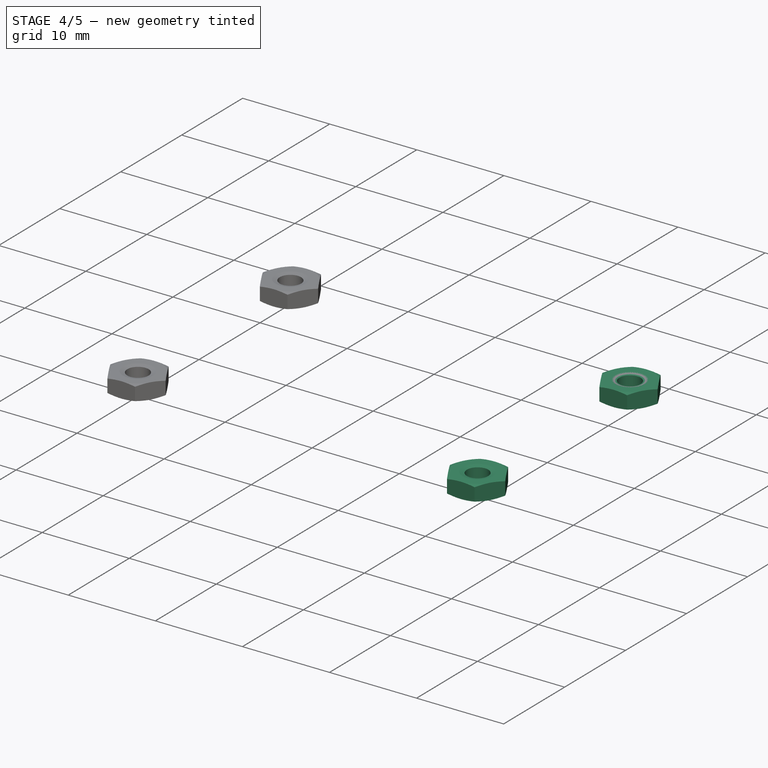
[diagram: stage 4 of 5 — iso view after this stage's code; geometry added in this stage tinted green]
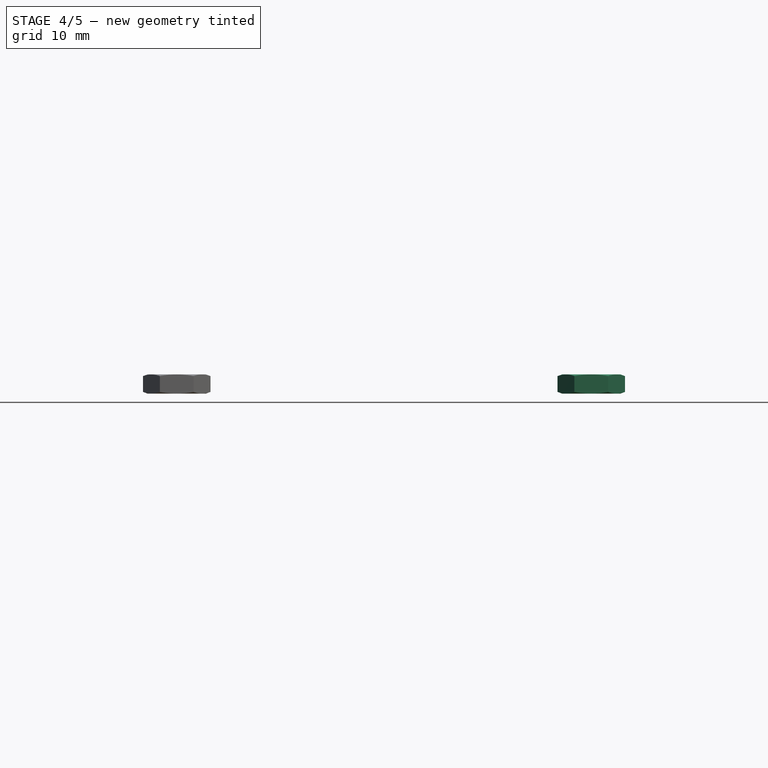
[diagram: stage 4 of 5 — front view after this stage's code; geometry added in this stage tinted green]
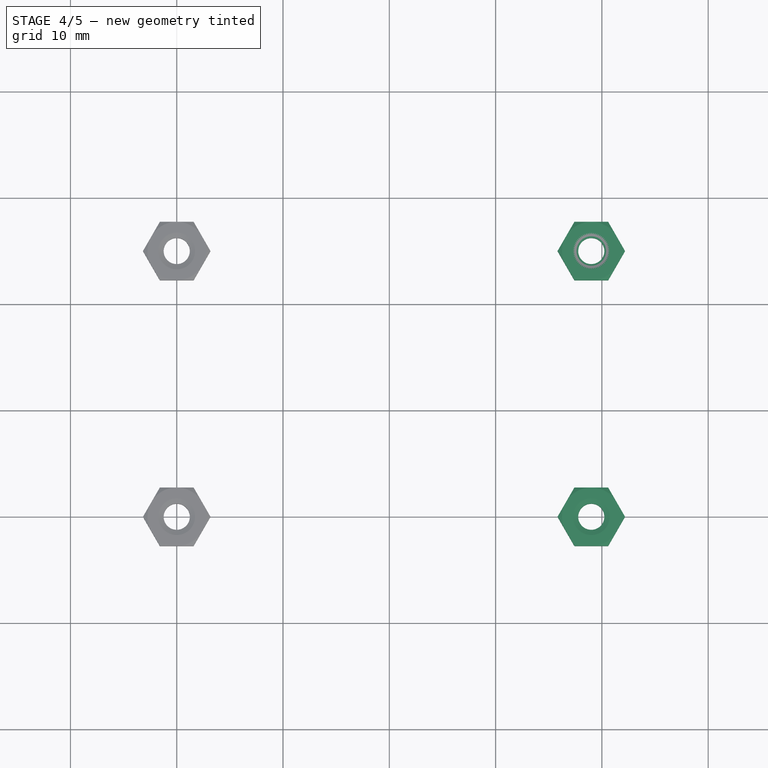
[diagram: stage 4 of 5 — top view after this stage's code; geometry added in this stage tinted green]
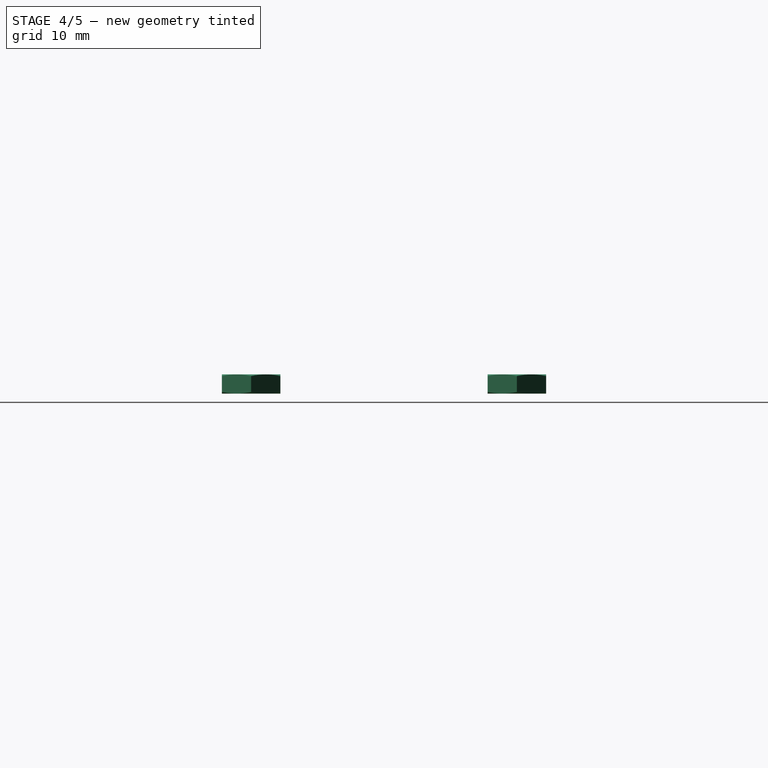
[diagram: stage 4 of 5 — right view after this stage's code; geometry added in this stage tinted green]
FEATURE [App::DocumentObjectGroup] Group002  label="Caseninho"
  Group = -> [Sketch,Sketch001,Sketch003,Sketch004,Fusion,Sketch005,Fusion001]
FEATURE [Part::FeaturePython] Screw  label="M3x8-Screw"  # Fasteners workbench fastener (typed FeaturePython)
  Placement = pos=(39.0003,-0.0001,6) rot=(0,0,1;0rad)
  baseObject = -> Fusion [Edge86]
  diameter = 4
  invert = false
  length = 3
  lengthCustom = 8
  matchOuter = false
  offset = 2
  thread = false
  type = 35
FEATURE [Part::FeaturePython] Nut  label="M3-Nut"  # Fasteners workbench fastener (typed FeaturePython)
  Placement = pos=(39.0003,-0.0001,-2) rot=(0,0,1;0rad)
  baseObject = -> Screw [Edge8]
  diameter = 4
  invert = false
  matchOuter = false
  offset = 0
  thread = false
  type = 9
FEATURE [Part::FeaturePython] Nut001  label="M3-Nut001"  # Fasteners workbench fastener (typed FeaturePython)
  Placement = pos=(39.0003,24.9999,-2) rot=(0,0,1;0rad)
  baseObject = -> Screw001 [Edge8]
  diameter = 4
  invert = false
  matchOuter = false
  offset = 0
  thread = false
  type = 9
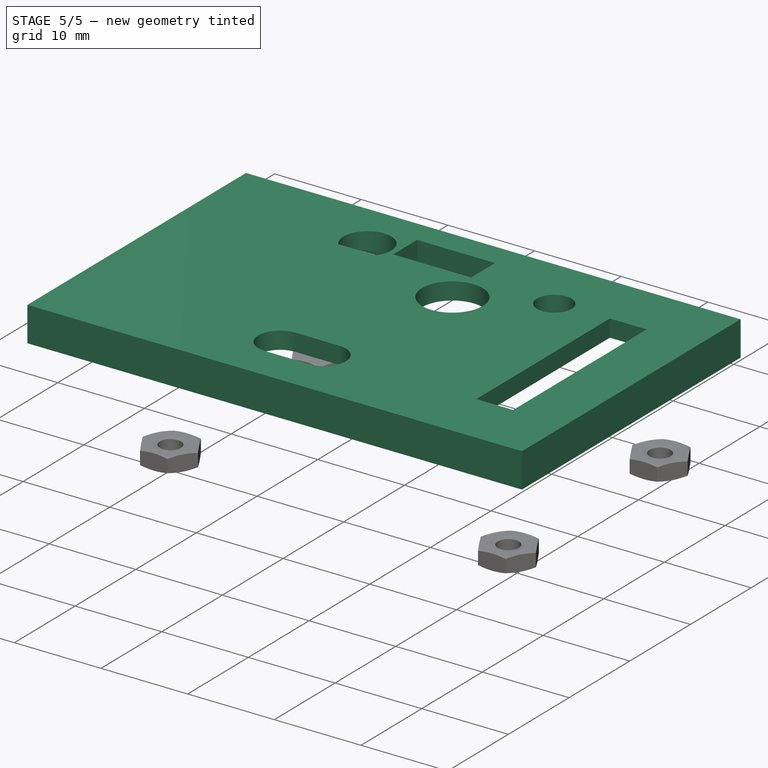
[diagram: stage 5 of 5 — iso view after this stage's code; geometry added in this stage tinted green]
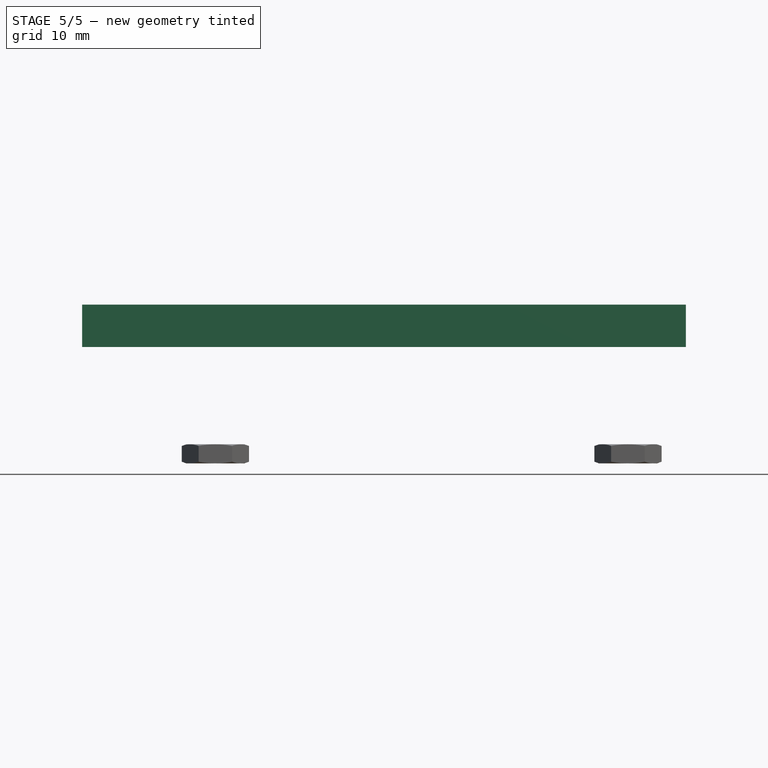
[diagram: stage 5 of 5 — front view after this stage's code; geometry added in this stage tinted green]
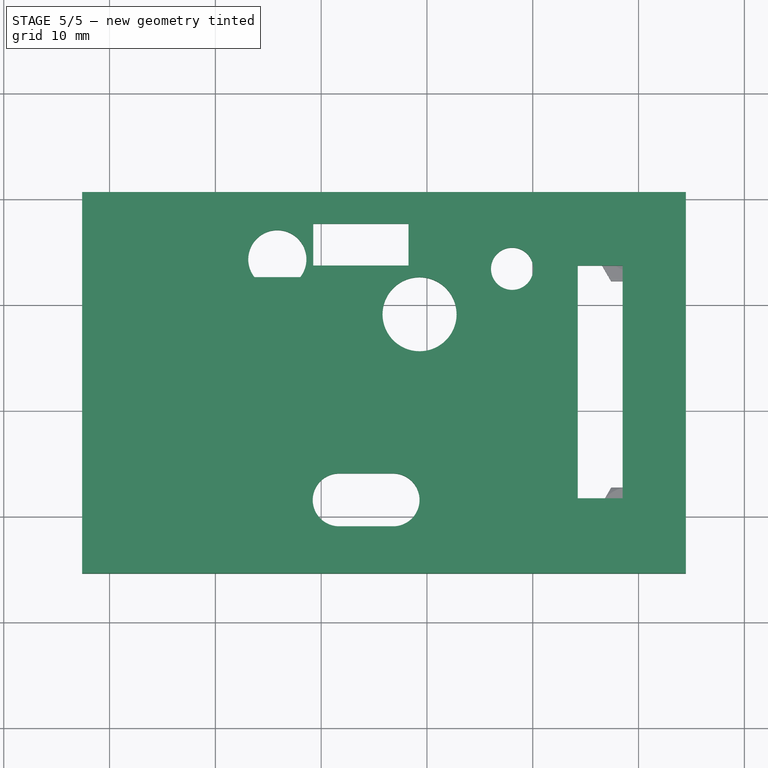
[diagram: stage 5 of 5 — top view after this stage's code; geometry added in this stage tinted green]
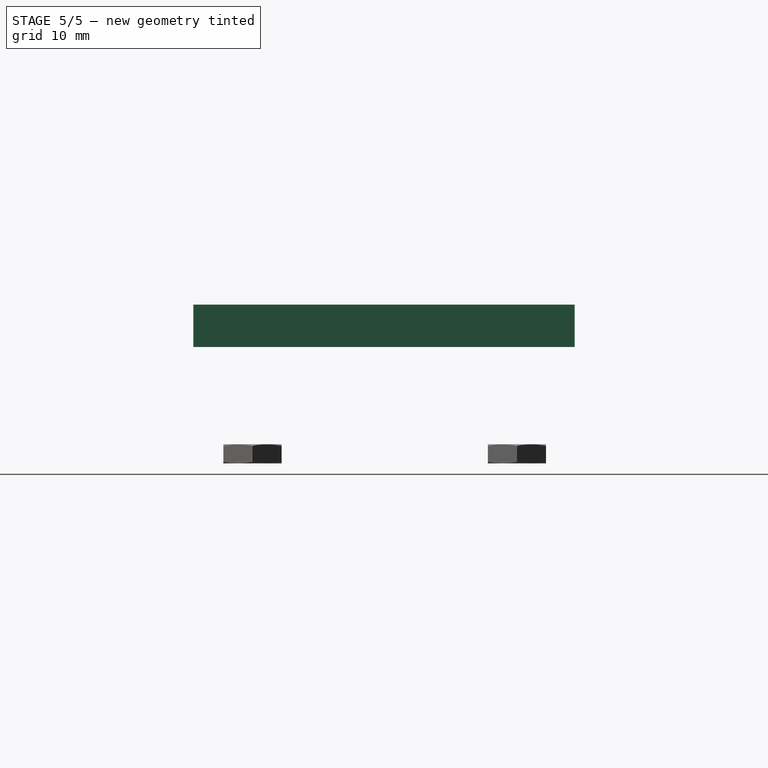
[diagram: stage 5 of 5 — right view after this stage's code; geometry added in this stage tinted green]
FEATURE [Sketcher::SketchObject] Sketch004  label="Encaixe Externo"
  ExternalGeometry = -> [Rectangle,Circle003,Circle002,Circle001,Circle]
  FullyConstrained = true
  Placement = pos=(0,0,9) rot=(0,0,1;0rad)
  expr: Constraints[63] = Spreadsheet.usb
  expr: Constraints[52] = Spreadsheet.espessura / 2
  expr: Constraints[62] = <<Spreadsheet>>.folga
  expr: Constraints[28] = Sketch003.Constraints[57]
  expr: Constraints[30] = Spreadsheet.espessura / 2 + Spreadsheet.folga
  expr: .Placement.Base.z = Spreadsheet.hborda + Spreadsheet.espessura + Spreadsheet.folgabase
  expr: Constraints[12] = Sketch003.Constraints[17]
  sketch-geometry (30):
    g0: LineSegment StartX=-9.59465 StartY=27.4474 StartZ=0 EndX=41.4728 EndY=27.4474 EndZ=0
    g1: LineSegment StartX=41.4728 StartY=27.4474 StartZ=0 EndX=41.4728 EndY=-2.5826 EndZ=0
    g2: LineSegment StartX=41.4728 StartY=-2.5826 StartZ=0 EndX=-9.59465 EndY=-2.5826 EndZ=0
    g3: Circle CenterX=0.00035 CenterY=24.9999 CenterZ=0 NormalX=0 NormalY=0 NormalZ=1 AngleXU=0 Radius=2
    g4: Circle CenterX=39.0003 CenterY=24.9999 CenterZ=0 NormalX=0 NormalY=0 NormalZ=1 AngleXU=0 Radius=2
    g5: Circle CenterX=39.0003 CenterY=-0.0001 CenterZ=0 NormalX=0 NormalY=0 NormalZ=1 AngleXU=0 Radius=2
    g6: Circle CenterX=0 CenterY=0 CenterZ=0 NormalX=0 NormalY=0 NormalZ=1 AngleXU=0 Radius=2
    g7: LineSegment StartX=-12.5947 StartY=30.4474 StartZ=0 EndX=44.4729 EndY=30.4474 EndZ=0
    g8: LineSegment StartX=44.4729 StartY=30.4474 StartZ=0 EndX=44.4729 EndY=-5.5826 EndZ=0
    g9: LineSegment StartX=44.4729 StartY=-5.5826 StartZ=0 EndX=-12.5947 EndY=-5.5826 EndZ=0
    g10: LineSegment StartX=-11.5947 StartY=29.4474 StartZ=0 EndX=43.4728 EndY=29.4474 EndZ=0
    g11: LineSegment StartX=43.4728 StartY=29.4474 StartZ=0 EndX=43.4728 EndY=-4.5826 EndZ=0
    g12: LineSegment StartX=43.4728 StartY=-4.5826 StartZ=0 EndX=-11.5947 EndY=-4.5826 EndZ=0
    g13: LineSegment StartX=15.9391 StartY=27.4474 StartZ=0 EndX=15.9391 EndY=29.4474 EndZ=0
    g14: LineSegment StartX=15.9391 StartY=29.4474 StartZ=0 EndX=15.9391 EndY=30.4474 EndZ=0
    g15: LineSegment StartX=-11.5947 StartY=19.4324 StartZ=0 EndX=-10.5947 EndY=19.4324 EndZ=0
    g16: LineSegment StartX=-10.5947 StartY=19.4324 StartZ=0 EndX=-10.5947 EndY=5.4324 EndZ=0
    g17: LineSegment StartX=-10.5947 StartY=5.4324 StartZ=0 EndX=-11.5947 EndY=5.4324 EndZ=0
    g18: LineSegment StartX=-11.5947 StartY=-4.5826 StartZ=0 EndX=-11.5947 EndY=5.4324 EndZ=0
    g19: LineSegment StartX=-10.5947 StartY=5.4324 StartZ=0 EndX=-11.5947 EndY=5.4324 EndZ=0
    g20: LineSegment StartX=-11.5947 StartY=19.4324 StartZ=0 EndX=-11.5947 EndY=29.4474 EndZ=0
    g21: LineSegment StartX=-12.5947 StartY=19.4324 StartZ=0 EndX=-11.5947 EndY=19.4324 EndZ=0
    g22: LineSegment StartX=-11.5947 StartY=19.4324 StartZ=0 EndX=-11.5947 EndY=5.4324 EndZ=0
    g23: LineSegment StartX=-9.59465 StartY=27.4474 StartZ=0 EndX=-9.59465 EndY=-2.5826 EndZ=0
    g24: LineSegment StartX=-12.5947 StartY=12.4324 StartZ=0 EndX=-11.5947 EndY=12.4324 EndZ=0
    g25: LineSegment StartX=-11.5947 StartY=12.4324 StartZ=0 EndX=-10.5947 EndY=12.4324 EndZ=0
    g26: LineSegment StartX=-10.5947 StartY=12.4324 StartZ=0 EndX=-9.59465 EndY=12.4324 EndZ=0
    g27: LineSegment StartX=15.9391 StartY=-4.5826 StartZ=0 EndX=15.9391 EndY=-5.5826 EndZ=0
    g28: LineSegment StartX=15.9391 StartY=-4.5826 StartZ=0 EndX=15.9391 EndY=-2.5826 EndZ=0
    g29: LineSegment StartX=-12.5947 StartY=-5.5826 StartZ=0 EndX=-12.5947 EndY=30.4474 EndZ=0
  constraints (76):
    c: Coincident(g0,g1)
    c: Coincident(g1,g2)
    c: Horizontal(g0)
    c: Vertical(g1)
    c: Coincident(g3,g-5)
    c: Coincident(g4,g-6)
    c: Coincident(g5,g-7)
    c: Coincident(g6,g-1)
    c: Coincident(g1,g-4)
    c: Equal(g5,g4)
    c: Equal(g4,g3)
    c: Equal(g3,g6)
    c: Diameter(g3) = 4
    c: Coincident(g7,g8)
    c: Coincident(g8,g9)
    c: Horizontal(g7)
    c: Horizontal(g9)
    c: Vertical(g8)
    c: Coincident(g10,g11)
    c: Coincident(g11,g12)
    c: Horizontal(g10)
    c: Horizontal(g12)
    c: Vertical(g11)
    c: Vertical(g13)
    c: Coincident(g13,g14)
    c: Vertical(g14)
    c: Symmetric(g7,g7,g14)
    c: Symmetric(g0,g0,g13)
    c: DistanceY(g14,g14) = 1
    c: Symmetric(g10,g10,g13)
    c: DistanceY(g13,g13) = 2
    c: Coincident(g0,g-3)
    c: Coincident(g2,g-4)
    c: Coincident(g15,g16)
    c: Coincident(g16,g17)
    c: Horizontal(g15)
    c: Horizontal(g17)
    c: Vertical(g16)
    c: Coincident(g18,g12)
    c: Vertical(g18)
    c: Coincident(g17,g18)
    c: Coincident(g19,g17)
    c: Horizontal(g19)
    c: Equal(g19,g17)
    c: Vertical(g20)
    c: Coincident(g10,g20)
    c: Coincident(g15,g20)
    c: Coincident(g21,g15)
    c: Horizontal(g21)
    c: Coincident(g22,g15)
    c: Coincident(g22,g17)
    c: Vertical(g22)
    c: DistanceX(g21,g21) = 1
    c: Coincident(g23,g0)
    c: Coincident(g23,g2)
    c: Coincident(g24,g25)
    c: PointOnObject(g25,g16)
    c: Horizontal(g25)
    c: Coincident(g25,g26)
    c: Horizontal(g26)
    c: Symmetric(g23,g23,g26)
    c: Symmetric(g22,g22,g24)
    c: DistanceX(g26,g26) = 1
    c: DistanceY(g19,g21) = 14
    c: Equal(g18,g20)
    c: Symmetric(g12,g12,g27)
    c: Symmetric(g9,g9,g27)
    c: Equal(g27,g14)
    c: Coincident(g28,g27)
    c: Symmetric(g2,g2,g28)
    c: Coincident(g29,g9)
    c: Coincident(g29,g7)
    c: Vertical(g29)
    c: Symmetric(g29,g29,g24)
    c: Equal(g24,g25)
    c: Equal(g24,g14)
FEATURE [Part::Extrusion] Extrude004  label="Encaixe Externo001"
  Base = -> Sketch004
  Dir = (0,0,1)
  DirMode = 2
  FaceMakerClass = Part::FaceMakerBullseye
  LengthFwd = 2
  LengthRev = 0
  Solid = true
  Symmetric = false
  expr: LengthFwd = Spreadsheet.espessura
FEATURE [Sketcher::SketchObject] Sketch005  label="Tampa"
  ExternalGeometry = -> [Rectangle,Circle003,Circle002,Circle001,Circle]
  FullyConstrained = false
  Placement = pos=(0,0,11) rot=(0,0,1;0rad)
  expr: .Placement.Base.z = Spreadsheet.hborda + 2 * Spreadsheet.espessura + Spreadsheet.folgabase
  expr: Constraints[33] = Sketch.Constraints[33]
  expr: Constraints[17] = Sketch.Constraints[17]
  sketch-geometry (32):
    g0: LineSegment StartX=-9.59465 StartY=27.4474 StartZ=0 EndX=41.4728 EndY=27.4474 EndZ=0
    g1: LineSegment StartX=41.4728 StartY=27.4474 StartZ=0 EndX=41.4728 EndY=-2.5826 EndZ=0
    g2: LineSegment StartX=41.4728 StartY=-2.5826 StartZ=0 EndX=-9.59465 EndY=-2.5826 EndZ=0
    g3: LineSegment StartX=-9.59465 StartY=-2.5826 StartZ=0 EndX=-9.59465 EndY=27.4474 EndZ=0
    g4: Circle CenterX=0.00035 CenterY=24.9999 CenterZ=0 NormalX=0 NormalY=0 NormalZ=1 AngleXU=0 Radius=2
    g5: Circle CenterX=39.0003 CenterY=24.9999 CenterZ=0 NormalX=0 NormalY=0 NormalZ=1 AngleXU=0 Radius=2
    g6: Circle CenterX=39.0003 CenterY=-0.0001 CenterZ=0 NormalX=0 NormalY=0 NormalZ=1 AngleXU=0 Radius=2
    g7: Circle CenterX=0 CenterY=0 CenterZ=0 NormalX=0 NormalY=0 NormalZ=1 AngleXU=0 Radius=2
    g8: LineSegment StartX=-12.5947 StartY=30.4474 StartZ=0 EndX=44.4728 EndY=30.4474 EndZ=0
    g9: LineSegment StartX=44.4728 StartY=30.4474 StartZ=0 EndX=44.4728 EndY=-5.5826 EndZ=0
    g10: LineSegment StartX=44.4728 StartY=-5.5826 StartZ=0 EndX=-12.5947 EndY=-5.5826 EndZ=0
    g11: LineSegment StartX=-12.5947 StartY=-5.5826 StartZ=0 EndX=-12.5947 EndY=30.4474 EndZ=0
    g12: LineSegment StartX=15.9391 StartY=30.4474 StartZ=0 EndX=15.9391 EndY=27.4474 EndZ=0
    g13: LineSegment StartX=-12.5947 StartY=12.4324 StartZ=0 EndX=-9.59465 EndY=12.4324 EndZ=0
    g14: Circle CenterX=19.3 CenterY=18.9 CenterZ=0 NormalX=0 NormalY=0 NormalZ=1 AngleXU=0 Radius=3.5
    g15: ArcOfCircle CenterX=5.85664 CenterY=24.1 CenterZ=0 NormalX=0 NormalY=0 NormalZ=1 AngleXU=0 Radius=2.75 StartAngle=5.61676 EndAngle=10.0912
    g16: LineSegment StartX=3.69504 StartY=22.4 StartZ=0 EndX=8.01824 EndY=22.4 EndZ=0
    g17: LineSegment StartX=5.85664 StartY=24.1 StartZ=0 EndX=5.85664 EndY=22.4 EndZ=0
    g18: LineSegment StartX=9.25 StartY=27.4474 StartZ=0 EndX=18.25 EndY=27.4474 EndZ=0
    g19: LineSegment StartX=18.25 StartY=27.4474 StartZ=0 EndX=18.25 EndY=23.5 EndZ=0
    g20: LineSegment StartX=18.25 StartY=23.5 StartZ=0 EndX=9.25 EndY=23.5 EndZ=0
    g21: LineSegment StartX=9.25 StartY=23.5 StartZ=0 EndX=9.25 EndY=27.4474 EndZ=0
    g22: LineSegment StartX=26.0509 StartY=23.2 StartZ=0 EndX=30.0509 EndY=23.2 EndZ=0
    g23: Circle CenterX=28.0509 CenterY=23.2 CenterZ=0 NormalX=0 NormalY=0 NormalZ=1 AngleXU=0 Radius=2
    g24: LineSegment StartX=34.25 StartY=23.5 StartZ=0 EndX=38.5 EndY=23.5 EndZ=0
    g25: LineSegment StartX=38.5 StartY=23.5 StartZ=0 EndX=38.5 EndY=1.5 EndZ=0
    g26: LineSegment StartX=38.5 StartY=1.5 StartZ=0 EndX=34.25 EndY=1.5 EndZ=0
    g27: LineSegment StartX=34.25 StartY=1.5 StartZ=0 EndX=34.25 EndY=23.5 EndZ=0
    g28: ArcOfCircle CenterX=11.7 CenterY=1.35 CenterZ=0 NormalX=0 NormalY=0 NormalZ=1 AngleXU=0 Radius=2.5 StartAngle=1.5708 EndAngle=4.71239
    g29: ArcOfCircle CenterX=16.8 CenterY=1.35 CenterZ=0 NormalX=0 NormalY=0 NormalZ=1 AngleXU=0 Radius=2.5 StartAngle=4.71239 EndAngle=7.85398
    g30: LineSegment StartX=11.7 StartY=-1.15 StartZ=0 EndX=16.8 EndY=-1.15 EndZ=0
    g31: LineSegment StartX=11.7 StartY=3.85 StartZ=0 EndX=16.8 EndY=3.85 EndZ=0
  constraints (79):
    c: Coincident(g0,g1)
    c: Coincident(g1,g2)
    c: Coincident(g2,g3)
    c: Coincident(g3,g0)
    c: Horizontal(g0)
    c: Horizontal(g2)
    c: Vertical(g1)
    c: Vertical(g3)
    c: Coincident(g4,g-5)
    c: Coincident(g5,g-6)
    c: Coincident(g6,g-7)
    c: Coincident(g7,g-1)
    c: Coincident(g0,g-3)
    c: Coincident(g1,g-4)
    c: Equal(g6,g5)
    c: Equal(g5,g4)
    c: Equal(g4,g7)
    c: Diameter(g4) = 4
    c: Coincident(g8,g9)
    c: Coincident(g9,g10)
    c: Coincident(g10,g11)
    c: Coincident(g11,g8)
    c: Horizontal(g8)
    c: Horizontal(g10)
    c: Vertical(g9)
    c: Vertical(g11)
    c: Vertical(g12)
    c: Horizontal(g13)
    c: Symmetric(g8,g8,g12)
    c: Symmetric(g0,g0,g12)
    c: Symmetric(g11,g11,g13)
    c: Symmetric(g3,g3,g13)
    c: Equal(g13,g12)
    c: DistanceY(g12,g12) = 3
    c: DistanceX(g14) = 19.3
    c: DistanceY(g14) = 18.9
    c: Diameter(g14) = 7
    c: DistanceX(g15) = 5.85664
    c: DistanceY(g15) = 24.1
    c: Diameter(g15) = 5.5
    c: Horizontal(g16)
    c: Coincident(g17,g15)
    c: Symmetric(g16,g16,g17)
    c: DistanceY(g17,g17) = 1.7
    c: Coincident(g15,g16)
    c: Coincident(g15,g16)
    c: Coincident(g18,g19)
    c: Coincident(g19,g20)
    c: Coincident(g20,g21)
    c: Coincident(g21,g18)
    c: Horizontal(g18)
    c: Horizontal(g20)
    c: Vertical(g19)
    c: Vertical(g21)
    c: PointOnObject(g18,g0)
    c: Horizontal(g22)
    c: PointOnObject(g22,g23)
    c: Symmetric(g22,g22,g23)
    c: Diameter(g23) = 4
    c: DistanceX(g23) = 28.0509
    c: DistanceY(g23) = 23.2
    c: Coincident(g24,g25)
    c: Coincident(g25,g26)
    c: Coincident(g26,g27)
    c: Coincident(g27,g24)
    c: Horizontal(g24)
    c: Horizontal(g26)
    c: Vertical(g25)
    c: Vertical(g27)
    c: Tangent(g28,g31) = 1.5708
    c: Tangent(g28,g30) = -1.5708
    c: Tangent(g30,g29) = -1.5708
    c: Tangent(g31,g29) = 1.5708
    c: Horizontal(g30)
    c: Equal(g28,g29)
    c: Diameter(g28) = 5
    c: DistanceX(g31,g31) = 5.1
    c: DistanceX(g28) = 11.7
    c: DistanceY(g28) = 1.35
FEATURE [Part::Extrusion] Extrude005  label="Tampa001"
  Base = -> Sketch005
  Dir = (0,0,1)
  DirMode = 2
  FaceMakerClass = Part::FaceMakerBullseye
  LengthFwd = 2
  LengthRev = 0
  Solid = true
  Symmetric = false
  expr: LengthFwd = Spreadsheet.espessura
FEATURE [Part::MultiFuse] Fusion001  label="Tampa002"
  Refine = true
  Shapes = -> [Extrude005,Extrude004]
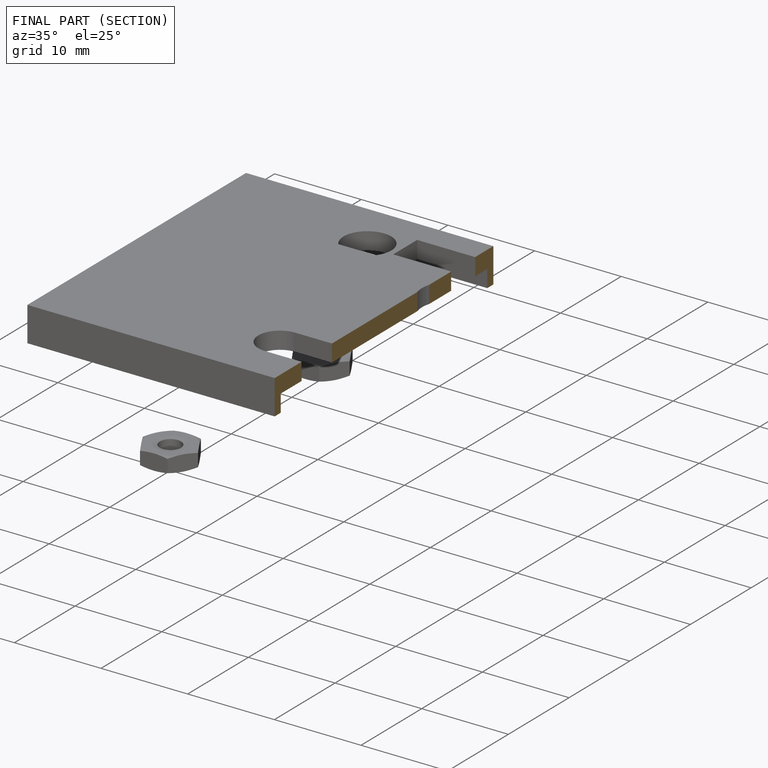
[diagram: finished part — half-section view (interior)]
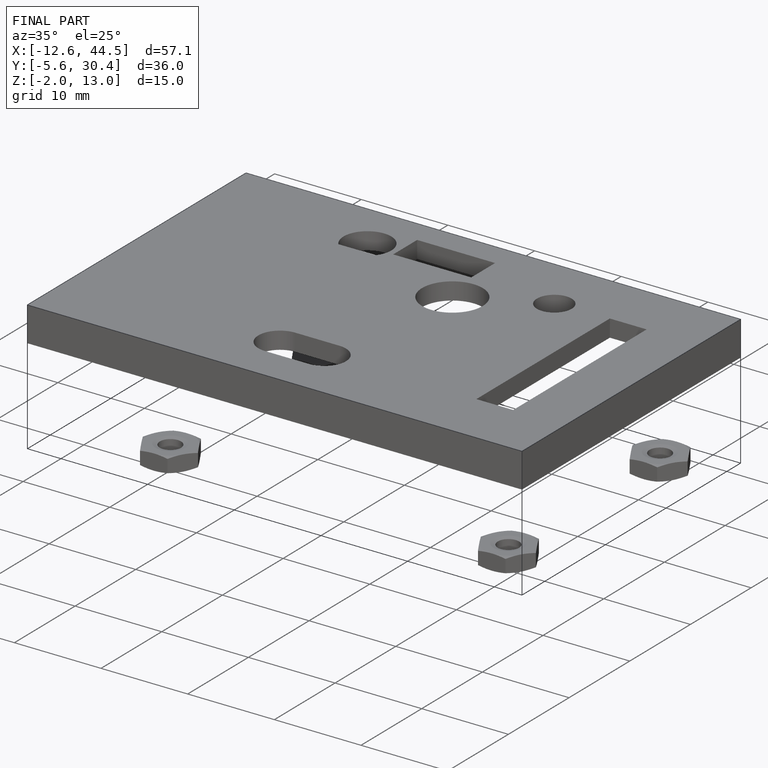
[diagram: finished part — iso view with bounding-box wireframe]
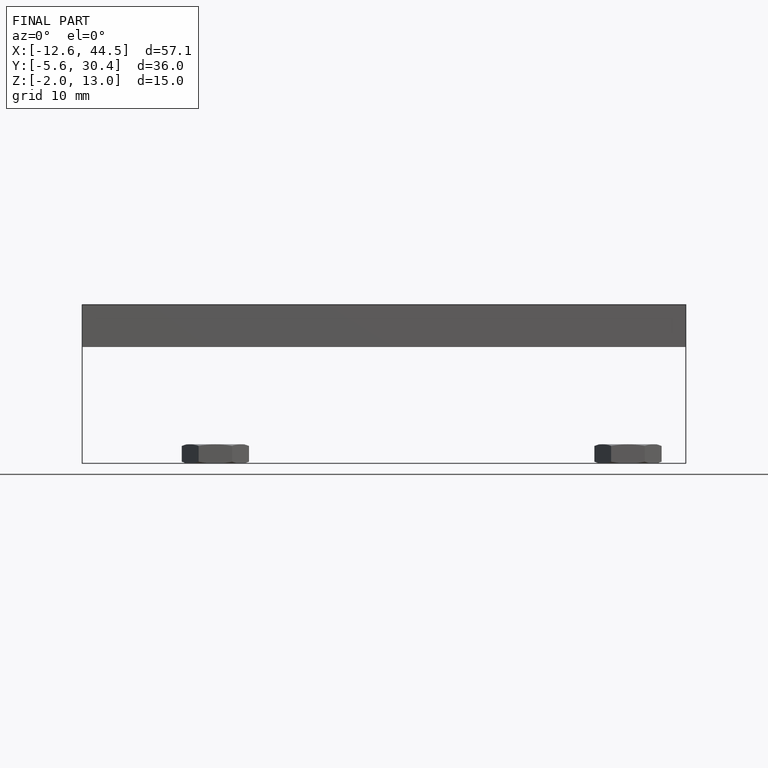
[diagram: finished part — front view with bounding-box wireframe]
